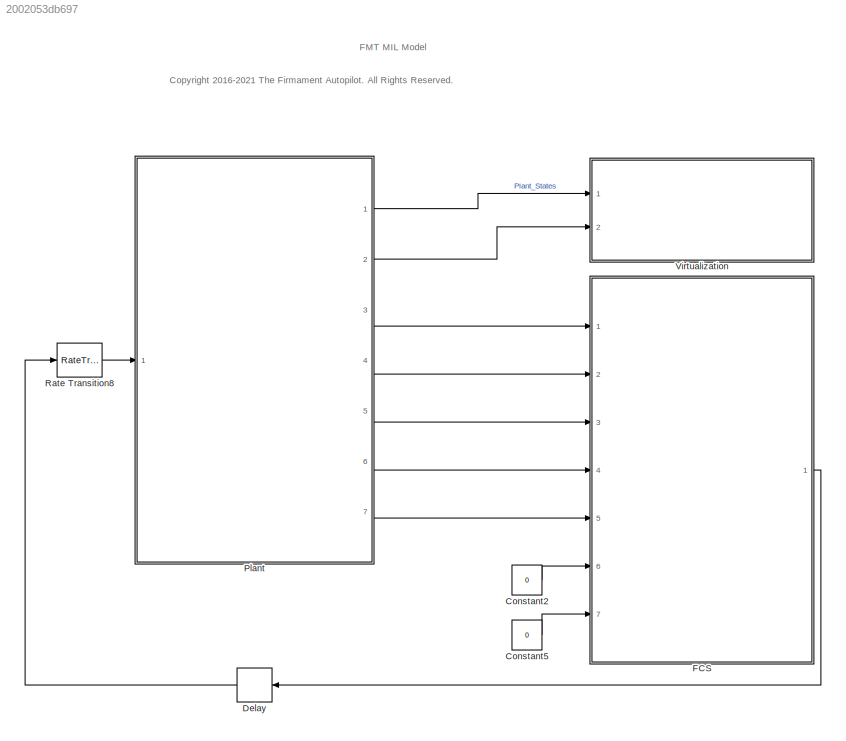
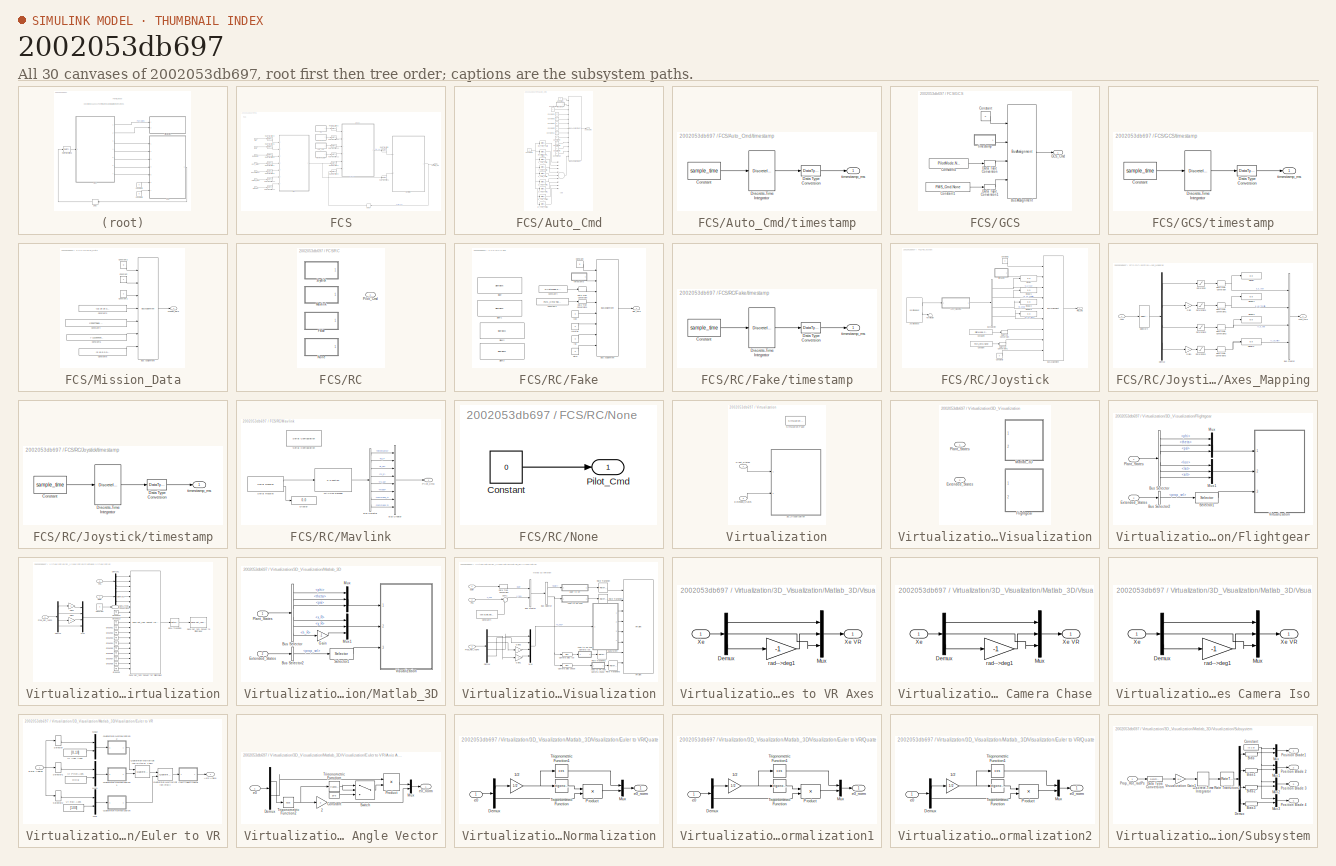
[diagram: thumbnail index - all 30 canvases of the model, root first then tree order]
MODEL slx_2002053db697
KIND model
CONFIG AbsTol = auto
CONFIG EnableMultiTasking = off
CONFIG FixedStep = 0.002
CONFIG MaxStep = auto
CONFIG MinStep = auto
CONFIG RelTol = 1e-3
CONFIG SampleTimeConstraint = Unconstrained
CONFIG Solver = FixedStepDiscrete
CONFIG SolverName = FixedStepDiscrete
CONFIG StartTime = 0.0
CONFIG StopTime = 1000
BLOCK [Constant] Constant2
  OutDataTypeStr = Bus: Rangefinder_Bus
  Value = 0
BLOCK [Constant] Constant5
  OutDataTypeStr = Bus: Optical_Flow_Bus
  Value = 0
BLOCK [Delay] Delay
  DelayLength = 1
  InputPortMap = u0
  Ports = [1, 1]
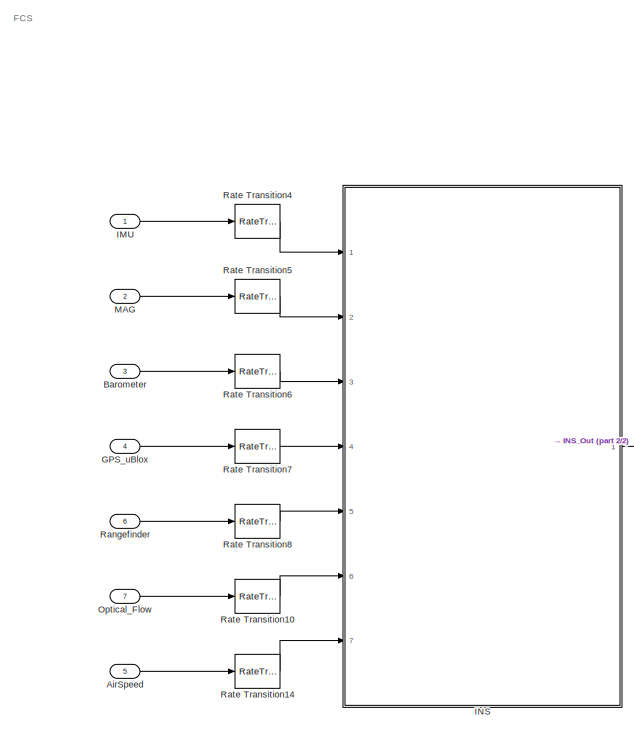
[diagram: FCS - part 1/2, left side, full height]
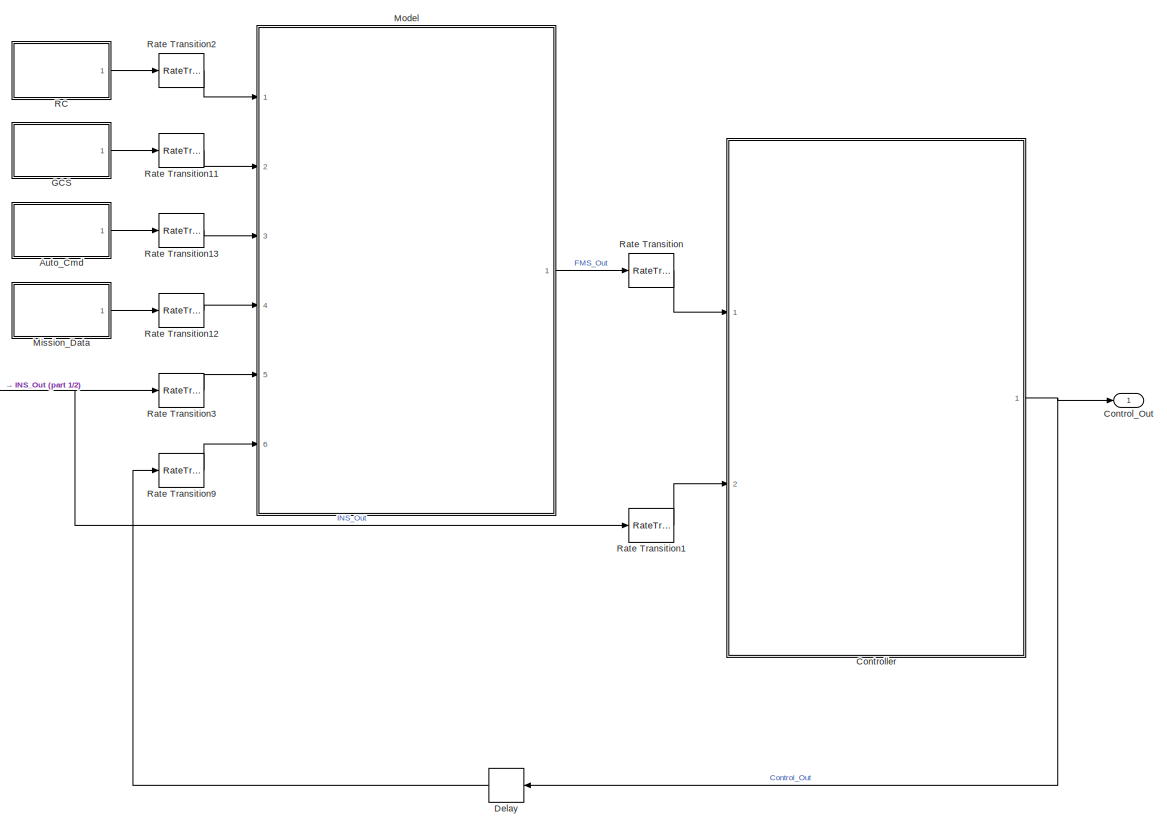
[diagram: FCS - part 2/2, right side, full height]
BLOCK [SubSystem] FCS
  Ports = [7, 1]
  RequestExecContextInheritance = off
  TreatAsAtomicUnit = on
BLOCK [Inport] FCS/AirSpeed
  IconDisplay = Port number
  Port = 5
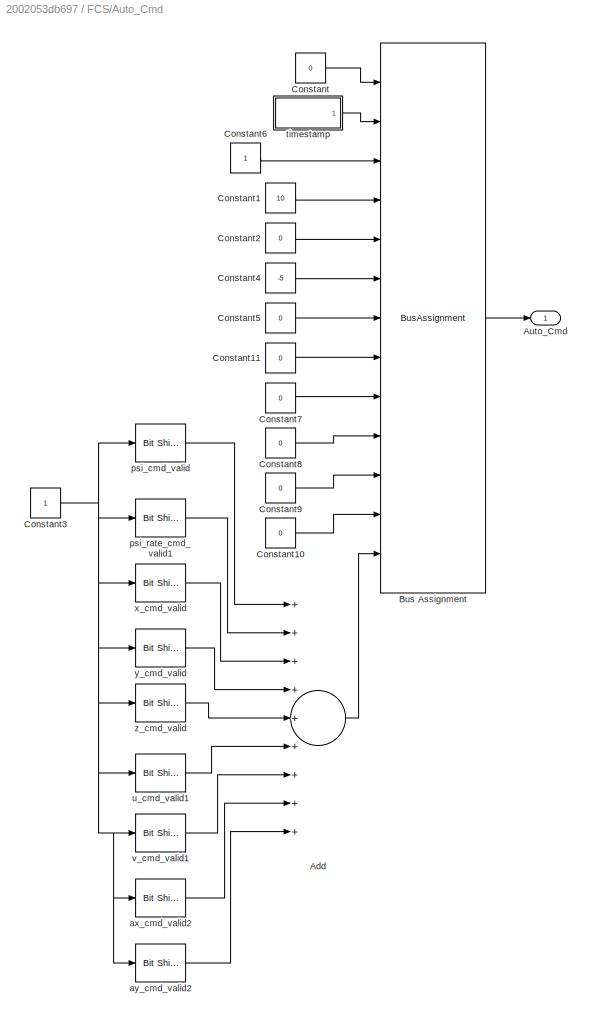
BLOCK [SubSystem] FCS/Auto_Cmd
  Ports = [0, 1]
  RequestExecContextInheritance = off
BLOCK [Sum] FCS/Auto_Cmd/Add
  InputSameDT = off
  Inputs = +++++++++
  OutDataTypeStr = Inherit: Inherit via internal rule
  Ports = [9, 1]
  SaturateOnIntegerOverflow = off
BLOCK [Outport] FCS/Auto_Cmd/Auto_Cmd
  IconDisplay = Port number
BLOCK [BusAssignment] FCS/Auto_Cmd/Bus Assignment
  AssignedSignals = timestamp,frame,x_cmd,y_cmd,z_cmd,psi_cmd,psi_rate_cmd,u_cmd,v_cmd,ax_cmd,ay_cmd,cmd_mask
  Ports = [13, 1]
BLOCK [Constant] FCS/Auto_Cmd/Constant
  OutDataTypeStr = Bus: Auto_Cmd_Bus
  Value = 0
BLOCK [Constant] FCS/Auto_Cmd/Constant1
  OutDataTypeStr = single
  Value = 10
BLOCK [Constant] FCS/Auto_Cmd/Constant10
  OutDataTypeStr = single
  Value = 0
BLOCK [Constant] FCS/Auto_Cmd/Constant11
  OutDataTypeStr = single
  Value = 0
BLOCK [Constant] FCS/Auto_Cmd/Constant2
  OutDataTypeStr = single
  Value = 0
BLOCK [Constant] FCS/Auto_Cmd/Constant3
  OutDataTypeStr = uint32
BLOCK [Constant] FCS/Auto_Cmd/Constant4
  OutDataTypeStr = single
  Value = -5
BLOCK [Constant] FCS/Auto_Cmd/Constant5
  OutDataTypeStr = single
  Value = 0
BLOCK [Constant] FCS/Auto_Cmd/Constant6
  OutDataTypeStr = uint8
BLOCK [Constant] FCS/Auto_Cmd/Constant7
  OutDataTypeStr = single
  Value = 0
BLOCK [Constant] FCS/Auto_Cmd/Constant8
  OutDataTypeStr = single
  Value = 0
BLOCK [Constant] FCS/Auto_Cmd/Constant9
  OutDataTypeStr = single
  Value = 0
BLOCK [Reference] FCS/Auto_Cmd/ax_cmd_valid2  REF=hdlsllib/Logic and Bit
Operations/Bit Shift
  Ports = [1, 1]
  SourceBlock = hdlsllib/Logic and Bit\nOperations/Bit Shift
  SourceProductBaseCode = HD
  SourceProductName = HDL Coder
  SourceType = Bit Shift
BLOCK [Reference] FCS/Auto_Cmd/ay_cmd_valid2  REF=hdlsllib/Logic and Bit
Operations/Bit Shift
  Ports = [1, 1]
  SourceBlock = hdlsllib/Logic and Bit\nOperations/Bit Shift
  SourceProductBaseCode = HD
  SourceProductName = HDL Coder
  SourceType = Bit Shift
BLOCK [Reference] FCS/Auto_Cmd/psi_cmd_valid  REF=hdlsllib/Logic and Bit
Operations/Bit Shift
  Ports = [1, 1]
  SourceBlock = hdlsllib/Logic and Bit\nOperations/Bit Shift
  SourceProductBaseCode = HD
  SourceProductName = HDL Coder
  SourceType = Bit Shift
BLOCK [Reference] FCS/Auto_Cmd/psi_rate_cmd_valid1  REF=hdlsllib/Logic and Bit
Operations/Bit Shift
  Ports = [1, 1]
  SourceBlock = hdlsllib/Logic and Bit\nOperations/Bit Shift
  SourceProductBaseCode = HD
  SourceProductName = HDL Coder
  SourceType = Bit Shift
BLOCK [SubSystem] FCS/Auto_Cmd/timestamp
  Ports = [0, 1]
  RequestExecContextInheritance = off
BLOCK [Constant] FCS/Auto_Cmd/timestamp/Constant
  Value = sample_time
BLOCK [DataTypeConversion] FCS/Auto_Cmd/timestamp/Data Type Conversion
  OutDataTypeStr = uint32
  RndMeth = Floor
  SaturateOnIntegerOverflow = off
BLOCK [DiscreteIntegrator] FCS/Auto_Cmd/timestamp/Discrete-Time Integrator
  ICPrevOutput = DiscIntNeverNeededParam
  ICPrevScaledInput = DiscIntNeverNeededParam
  InitialConditionSetting = Auto
  IntegratorMethod = Accumulation: Forward Euler
  Ports = [1, 1]
  SampleTime = -1
BLOCK [Outport] FCS/Auto_Cmd/timestamp/timestamp_ms
  IconDisplay = Port number
BLOCK [Reference] FCS/Auto_Cmd/u_cmd_valid1  REF=hdlsllib/Logic and Bit
Operations/Bit Shift
  Ports = [1, 1]
  SourceBlock = hdlsllib/Logic and Bit\nOperations/Bit Shift
  SourceProductBaseCode = HD
  SourceProductName = HDL Coder
  SourceType = Bit Shift
BLOCK [Reference] FCS/Auto_Cmd/v_cmd_valid1  REF=hdlsllib/Logic and Bit
Operations/Bit Shift
  Ports = [1, 1]
  SourceBlock = hdlsllib/Logic and Bit\nOperations/Bit Shift
  SourceProductBaseCode = HD
  SourceProductName = HDL Coder
  SourceType = Bit Shift
BLOCK [Reference] FCS/Auto_Cmd/x_cmd_valid  REF=hdlsllib/Logic and Bit
Operations/Bit Shift
  Ports = [1, 1]
  SourceBlock = hdlsllib/Logic and Bit\nOperations/Bit Shift
  SourceProductBaseCode = HD
  SourceProductName = HDL Coder
  SourceType = Bit Shift
BLOCK [Reference] FCS/Auto_Cmd/y_cmd_valid  REF=hdlsllib/Logic and Bit
Operations/Bit Shift
  Ports = [1, 1]
  SourceBlock = hdlsllib/Logic and Bit\nOperations/Bit Shift
  SourceProductBaseCode = HD
  SourceProductName = HDL Coder
  SourceType = Bit Shift
BLOCK [Reference] FCS/Auto_Cmd/z_cmd_valid  REF=hdlsllib/Logic and Bit
Operations/Bit Shift
  Ports = [1, 1]
  SourceBlock = hdlsllib/Logic and Bit\nOperations/Bit Shift
  SourceProductBaseCode = HD
  SourceProductName = HDL Coder
  SourceType = Bit Shift
BLOCK [Inport] FCS/Barometer
  IconDisplay = Port number
  Port = 3
BLOCK [Outport] FCS/Control_Out
  IconDisplay = Port number
BLOCK [ModelReference] FCS/Controller
  ModelNameDialog = Controller.slx
  ModelReferenceVersion = 1.908
  Ports = [2, 1]
BLOCK [Delay] FCS/Delay
  DelayLength = 1
  InputPortMap = u0
  Ports = [1, 1]
BLOCK [SubSystem] FCS/GCS
  Ports = [0, 1]
  RequestExecContextInheritance = off
BLOCK [BusAssignment] FCS/GCS/Bus Assignment
  AssignedSignals = timestamp,mode,cmd_1
  Ports = [4, 1]
BLOCK [Constant] FCS/GCS/Constant
  OutDataTypeStr = Bus: GCS_Cmd_Bus
  Value = 0
BLOCK [Constant] FCS/GCS/Constant1
  Value = FMS_Cmd.None
BLOCK [Constant] FCS/GCS/Constant4
  SampleTime = -1
  Value = PilotMode.None
BLOCK [DataTypeConversion] FCS/GCS/Data Type Conversion
  RndMeth = Floor
  SaturateOnIntegerOverflow = off
BLOCK [DataTypeConversion] FCS/GCS/Data Type Conversion1
  RndMeth = Floor
  SaturateOnIntegerOverflow = off
BLOCK [Outport] FCS/GCS/GCS_Cmd
  IconDisplay = Port number
BLOCK [SubSystem] FCS/GCS/timestamp
  Ports = [0, 1]
  RequestExecContextInheritance = off
BLOCK [Constant] FCS/GCS/timestamp/Constant
  Value = sample_time
BLOCK [DataTypeConversion] FCS/GCS/timestamp/Data Type Conversion
  OutDataTypeStr = uint32
  RndMeth = Floor
  SaturateOnIntegerOverflow = off
BLOCK [DiscreteIntegrator] FCS/GCS/timestamp/Discrete-Time Integrator
  ICPrevOutput = DiscIntNeverNeededParam
  ICPrevScaledInput = DiscIntNeverNeededParam
  InitialConditionSetting = Auto
  IntegratorMethod = Accumulation: Forward Euler
  Ports = [1, 1]
  SampleTime = -1
BLOCK [Outport] FCS/GCS/timestamp/timestamp_ms
  IconDisplay = Port number
BLOCK [Inport] FCS/GPS_uBlox
  IconDisplay = Port number
  Port = 4
BLOCK [Inport] FCS/IMU
  IconDisplay = Port number
BLOCK [ModelReference] FCS/INS
  ModelNameDialog = INS.slx
  ModelReferenceVersion = 1.3768
  Ports = [7, 1]
BLOCK [Inport] FCS/MAG
  IconDisplay = Port number
  Port = 2
BLOCK [SubSystem] FCS/Mission_Data
  Ports = [0, 1]
  RequestExecContextInheritance = off
BLOCK [BusAssignment] FCS/Mission_Data/Bus Assignment
  AssignedSignals = timestamp,valid_items,command,x,y,z
  Ports = [7, 1]
BLOCK [Constant] FCS/Mission_Data/Constant
  OutDataTypeStr = Inherit: Inherit via back propagation
BLOCK [Constant] FCS/Mission_Data/Constant1
  OutDataTypeStr = Inherit: Inherit via back propagation
  Value = 4
BLOCK [Constant] FCS/Mission_Data/Constant2
  OutDataTypeStr = Bus: Mission_Data_Bus
  Value = 0
BLOCK [Constant] FCS/Mission_Data/Constant3
  OutDataTypeStr = Inherit: Inherit via back propagation
  Value = [22 16 16 20 0 0 0 0]
BLOCK [Constant] FCS/Mission_Data/Constant4
  OutDataTypeStr = Inherit: Inherit via back propagation
  Value = [376277883 376280341 376277815 0 0 0 0 0]
BLOCK [Constant] FCS/Mission_Data/Constant5
  OutDataTypeStr = Inherit: Inherit via back propagation
  Value = [-1223895080 -1223892241 -1223890046 0 0 0 0 0]
BLOCK [Constant] FCS/Mission_Data/Constant6
  OutDataTypeStr = Inherit: Inherit via back propagation
  Value = [5 10 5 0 0 0 0 0]
BLOCK [Outport] FCS/Mission_Data/Mission_Data
  IconDisplay = Port number
BLOCK [ModelReference] FCS/Model
  ModelNameDialog = FMS.slx
  ModelReferenceVersion = 1.1932
  Ports = [6, 1]
BLOCK [Inport] FCS/Optical_Flow
  IconDisplay = Port number
  Port = 7
BLOCK [SubSystem] FCS/RC
  LabelModeActiveChoice = NONE_INPUT
  Ports = [0, 1]
  RequestExecContextInheritance = off
  Variant = on
  VariantControl = Variant1
  VariantControlMode = Label
BLOCK [Outport] FCS/RC/ Pilot_Cmd
  IconDisplay = Port number
BLOCK [SubSystem] FCS/RC/Fake
  Ports = [0, 1]
  RequestExecContextInheritance = off
  VariantControl = FAKE_INPUT
BLOCK [BusAssignment] FCS/RC/Fake/Bus Assignment
  AssignedSignals = timestamp,mode,cmd_1,stick_yaw,stick_throttle,stick_roll,stick_pitch
  Ports = [8, 1]
BLOCK [Constant] FCS/RC/Fake/Constant
  OutDataTypeStr = Bus: Pilot_Cmd_Bus
  Value = 0
BLOCK [Constant] FCS/RC/Fake/Constant1
  Value = FMS_Cmd.Takeoff
BLOCK [Constant] FCS/RC/Fake/Constant4
  SampleTime = -1
  Value = PilotMode.Position
BLOCK [DataTypeConversion] FCS/RC/Fake/Data Type Conversion
  RndMeth = Floor
  SaturateOnIntegerOverflow = off
BLOCK [DataTypeConversion] FCS/RC/Fake/Data Type Conversion1
  RndMeth = Floor
  SaturateOnIntegerOverflow = off
BLOCK [Outport] FCS/RC/Fake/Pilot_Cmd
  IconDisplay = Port number
  OutDataTypeStr = Bus: Pilot_Cmd_Bus
BLOCK [SliderBlock] FCS/RC/Fake/Slider
  ScaleMax = 1
  ScaleMin = -1
  WebBlockId = 1308
BLOCK [SliderBlock] FCS/RC/Fake/Slider1
  ScaleMax = 1
  ScaleMin = -1
  WebBlockId = 1315
BLOCK [SliderBlock] FCS/RC/Fake/Slider2
  ScaleMax = 1
  ScaleMin = -1
  WebBlockId = 1316
BLOCK [SliderBlock] FCS/RC/Fake/Slider3
  ScaleMax = 1
  ScaleMin = -1
  WebBlockId = 1317
BLOCK [Constant] FCS/RC/Fake/pitch
  OutDataTypeStr = single
  Value = 0
BLOCK [Constant] FCS/RC/Fake/roll
  OutDataTypeStr = single
  Value = 0
BLOCK [Constant] FCS/RC/Fake/throttle
  OutDataTypeStr = single
  Value = 0
BLOCK [SubSystem] FCS/RC/Fake/timestamp
  Ports = [0, 1]
  RequestExecContextInheritance = off
BLOCK [Constant] FCS/RC/Fake/timestamp/Constant
  Value = sample_time
BLOCK [DataTypeConversion] FCS/RC/Fake/timestamp/Data Type Conversion
  OutDataTypeStr = uint32
  RndMeth = Floor
  SaturateOnIntegerOverflow = off
BLOCK [DiscreteIntegrator] FCS/RC/Fake/timestamp/Discrete-Time Integrator
  ICPrevOutput = DiscIntNeverNeededParam
  ICPrevScaledInput = DiscIntNeverNeededParam
  InitialConditionSetting = Auto
  IntegratorMethod = Accumulation: Forward Euler
  Ports = [1, 1]
  SampleTime = -1
BLOCK [Outport] FCS/RC/Fake/timestamp/timestamp_ms
  IconDisplay = Port number
BLOCK [Constant] FCS/RC/Fake/yaw
  OutDataTypeStr = single
  Value = 0
BLOCK [SubSystem] FCS/RC/Joystick
  Ports = [0, 1]
  RequestExecContextInheritance = off
  VariantControl = JOYSTICK_INPUT
BLOCK [SubSystem] FCS/RC/Joystick/Axes_Mapping
  Ports = [1, 1]
  RequestExecContextInheritance = off
BLOCK [Inport] FCS/RC/Joystick/Axes_Mapping/Axes
  IconDisplay = Port number
BLOCK [BusCreator] FCS/RC/Joystick/Axes_Mapping/Bus Creator
  DisplayOption = bar
  InheritFromInputs = on
  Inputs = 4
  Ports = [4, 1]
BLOCK [DataTypeConversion] FCS/RC/Joystick/Axes_Mapping/Data Type Conversion
  OutDataTypeStr = single
  RndMeth = Floor
  SaturateOnIntegerOverflow = off
BLOCK [DataTypeConversion] FCS/RC/Joystick/Axes_Mapping/Data Type Conversion1
  OutDataTypeStr = single
  RndMeth = Floor
  SaturateOnIntegerOverflow = off
BLOCK [DataTypeConversion] FCS/RC/Joystick/Axes_Mapping/Data Type Conversion2
  OutDataTypeStr = single
  RndMeth = Floor
  SaturateOnIntegerOverflow = off
BLOCK [DataTypeConversion] FCS/RC/Joystick/Axes_Mapping/Data Type Conversion3
  OutDataTypeStr = single
  RndMeth = Floor
  SaturateOnIntegerOverflow = off
BLOCK [Demux] FCS/RC/Joystick/Axes_Mapping/Demux
  DisplayOption = bar
  Ports = [1, 4]
BLOCK [Display] FCS/RC/Joystick/Axes_Mapping/Display
  Decimation = 1
  Ports = [1]
BLOCK [Display] FCS/RC/Joystick/Axes_Mapping/Display1
  Decimation = 1
  Ports = [1]
BLOCK [Display] FCS/RC/Joystick/Axes_Mapping/Display2
  Decimation = 1
  Ports = [1]
BLOCK [Display] FCS/RC/Joystick/Axes_Mapping/Display3
  Decimation = 1
  Ports = [1]
BLOCK [Gain] FCS/RC/Joystick/Axes_Mapping/Gain
  Gain = -1
  ParamDataTypeStr = Inherit: Inherit via internal rule
  SaturateOnIntegerOverflow = off
BLOCK [Gain] FCS/RC/Joystick/Axes_Mapping/Gain1
  Gain = -1
  ParamDataTypeStr = Inherit: Inherit via internal rule
  SaturateOnIntegerOverflow = off
BLOCK [Saturate] FCS/RC/Joystick/Axes_Mapping/Saturation
  InputPortMap = u0
  LowerLimit = -1
  Ports = [1, 1]
  UpperLimit = 1
BLOCK [Saturate] FCS/RC/Joystick/Axes_Mapping/Saturation1
  InputPortMap = u0
  LowerLimit = -1
  Ports = [1, 1]
  UpperLimit = 1
BLOCK [Saturate] FCS/RC/Joystick/Axes_Mapping/Saturation2
  InputPortMap = u0
  LowerLimit = -1
  Ports = [1, 1]
  UpperLimit = 1
BLOCK [Saturate] FCS/RC/Joystick/Axes_Mapping/Saturation3
  InputPortMap = u0
  LowerLimit = -1
  Ports = [1, 1]
  UpperLimit = 1
BLOCK [Selector] FCS/RC/Joystick/Axes_Mapping/Selector4
  IndexOptions = Index vector (dialog)
  Indices = [1 2 4 5]
  InputPortWidth = 8
  OutputSizes = 1
  Ports = [1, 1]
BLOCK [Outport] FCS/RC/Joystick/Axes_Mapping/stick_cmd
  IconDisplay = Port number
BLOCK [BusAssignment] FCS/RC/Joystick/Bus Assignment
  AssignedSignals = timestamp,stick_yaw,stick_throttle,stick_roll,stick_pitch,mode,cmd_1,cmd_2
  Ports = [9, 1]
BLOCK [BusSelector] FCS/RC/Joystick/Bus Selector
  OutputAsBus = off
  OutputSignals = ls_lr_Yaw,ls_ud_Throttle,rs_lr_Roll,rs_ud_Pitch
  Ports = [1, 4]
BLOCK [Constant] FCS/RC/Joystick/Constant
  Value = FMS_Cmd.None
BLOCK [Constant] FCS/RC/Joystick/Constant1
  OutDataTypeStr = Bus: Pilot_Cmd_Bus
  Value = 0
BLOCK [Constant] FCS/RC/Joystick/Constant3
  OutDataTypeStr = Inherit: Inherit via back propagation
  Value = 0
BLOCK [Constant] FCS/RC/Joystick/Constant4
  SampleTime = -1
  Value = PilotMode.Position
BLOCK [DataTypeConversion] FCS/RC/Joystick/Data Type Conversion
  RndMeth = Floor
  SaturateOnIntegerOverflow = off
BLOCK [DataTypeConversion] FCS/RC/Joystick/Data Type Conversion1
  RndMeth = Floor
  SaturateOnIntegerOverflow = off
BLOCK [Display] FCS/RC/Joystick/Display
  Decimation = 1
  Ports = [1]
BLOCK [Display] FCS/RC/Joystick/Display1
  Decimation = 1
  Ports = [1]
BLOCK [Display] FCS/RC/Joystick/Display2
  Decimation = 1
  Ports = [1]
BLOCK [Display] FCS/RC/Joystick/Display3
  Decimation = 1
  Ports = [1]
BLOCK [Reference] FCS/RC/Joystick/Joystick Input  REF=vrlib/Joystick Input
  Ports = [0, 2]
  SourceBlock = vrlib/Joystick Input
  SourceProductBaseCode = VR
  SourceProductName = Simulink 3D Animation
  SourceType = Joystick Input
BLOCK [Outport] FCS/RC/Joystick/Pilot_Cmd
  IconDisplay = Port number
  OutDataTypeStr = Bus: Pilot_Cmd_Bus
BLOCK [Terminator] FCS/RC/Joystick/Terminator
BLOCK [SubSystem] FCS/RC/Joystick/timestamp
  Ports = [0, 1]
  RequestExecContextInheritance = off
BLOCK [Constant] FCS/RC/Joystick/timestamp/Constant
  Value = sample_time
BLOCK [DataTypeConversion] FCS/RC/Joystick/timestamp/Data Type Conversion
  OutDataTypeStr = uint32
  RndMeth = Floor
  SaturateOnIntegerOverflow = off
BLOCK [DiscreteIntegrator] FCS/RC/Joystick/timestamp/Discrete-Time Integrator
  ICPrevOutput = DiscIntNeverNeededParam
  ICPrevScaledInput = DiscIntNeverNeededParam
  InitialConditionSetting = Auto
  IntegratorMethod = Accumulation: Forward Euler
  Ports = [1, 1]
  SampleTime = -1
BLOCK [Outport] FCS/RC/Joystick/timestamp/timestamp_ms
  IconDisplay = Port number
BLOCK [SubSystem] FCS/RC/Mavlink
  Ports = [0, 1]
  RequestExecContextInheritance = off
  VariantControl = MAVLINK_INPUT
BLOCK [BusCreator] FCS/RC/Mavlink/Bus Creator
  DisplayOption = bar
  InheritFromInputs = on
  Inputs = 8
  Ports = [8, 1]
BLOCK [BusSelector] FCS/RC/Mavlink/Bus Selector
  OutputAsBus = off
  OutputSignals = timestamp,ls_lr,ls_ud,rs_lr,rs_ud,mode,command_1,command_2
  Ports = [1, 8]
BLOCK [Display] FCS/RC/Mavlink/Display
  Decimation = 1
  Ports = [1]
BLOCK [S-Function] FCS/RC/Mavlink/MAVLink Decoder
  EnableBusSupport = off
  FunctionName = sfun_decode_mavlink
  Ports = [1, 1]
  SFcnIsStateOwnerBlock = off
  SFunctionDeploymentMode = off
BLOCK [Outport] FCS/RC/Mavlink/Pilot_Cmd
  IconDisplay = Port number
BLOCK [Reference] FCS/RC/Mavlink/Serial Configuration  REF=instrumentlib/Serial Configuration
  Ports = []
  Priority = -200000
  SourceBlock = instrumentlib/Serial Configuration
  SourceProductBaseCode = IC
  SourceProductName = Instrument Control Toolbox
  SourceType = Serial Configuration
BLOCK [Reference] FCS/RC/Mavlink/Serial Receive  REF=instrumentlib/Serial Receive
  Ports = [0, 2]
  SourceBlock = instrumentlib/Serial Receive
  SourceProductBaseCode = IC
  SourceProductName = Instrument Control Toolbox
  SourceType = Serial Receive
BLOCK [SubSystem] FCS/RC/None
  Ports = [0, 1]
  RequestExecContextInheritance = off
  VariantControl = NONE_INPUT
BLOCK [Constant] FCS/RC/None/Constant
  OutDataTypeStr = Bus: Pilot_Cmd_Bus
  Value = 0
BLOCK [Outport] FCS/RC/None/Pilot_Cmd
  IconDisplay = Port number
  OutDataTypeStr = Bus: Pilot_Cmd_Bus
BLOCK [Inport] FCS/Rangefinder
  IconDisplay = Port number
  Port = 6
BLOCK [RateTransition] FCS/Rate Transition
  OutPortSampleTime = CONTROL_CONST.dt
BLOCK [RateTransition] FCS/Rate Transition1
  OutPortSampleTime = CONTROL_CONST.dt
BLOCK [RateTransition] FCS/Rate Transition10
  OutPortSampleTime = INS_CONST.dt
BLOCK [RateTransition] FCS/Rate Transition11
  OutPortSampleTime = FMS_CONST.dt
BLOCK [RateTransition] FCS/Rate Transition12
  OutPortSampleTime = FMS_CONST.dt
BLOCK [RateTransition] FCS/Rate Transition13
  OutPortSampleTime = FMS_CONST.dt
BLOCK [RateTransition] FCS/Rate Transition14
  OutPortSampleTime = INS_CONST.dt
BLOCK [RateTransition] FCS/Rate Transition2
  OutPortSampleTime = FMS_CONST.dt
BLOCK [RateTransition] FCS/Rate Transition3
  OutPortSampleTime = FMS_CONST.dt
BLOCK [RateTransition] FCS/Rate Transition4
  OutPortSampleTime = INS_CONST.dt
BLOCK [RateTransition] FCS/Rate Transition5
  OutPortSampleTime = INS_CONST.dt
BLOCK [RateTransition] FCS/Rate Transition6
  OutPortSampleTime = INS_CONST.dt
BLOCK [RateTransition] FCS/Rate Transition7
  OutPortSampleTime = INS_CONST.dt
BLOCK [RateTransition] FCS/Rate Transition8
  OutPortSampleTime = INS_CONST.dt
BLOCK [RateTransition] FCS/Rate Transition9
  OutPortSampleTime = FMS_CONST.dt
BLOCK [ModelReference] Plant
  ModelNameDialog = Plant.slx
  ModelReferenceVersion = 1.763
  Ports = [1, 7]
BLOCK [RateTransition] Rate Transition8
  OutPortSampleTime = PLANT_CONST.dt
BLOCK [SubSystem] Virtualization
  Ports = [2]
  RequestExecContextInheritance = off
  TreatAsAtomicUnit = on
BLOCK [SubSystem] Virtualization/3D_Visualization
  LabelModeActiveChoice = Matlab_3D
  Ports = [2]
  RequestExecContextInheritance = off
  Variant = on
  VariantControlMode = Label
BLOCK [Inport] Virtualization/3D_Visualization/Extended_States
  IconDisplay = Port number
  Port = 2
BLOCK [SubSystem] Virtualization/3D_Visualization/Flightgear
  Ports = [2]
  RequestExecContextInheritance = off
  VariantControl = Flightgear
BLOCK [BusSelector] Virtualization/3D_Visualization/Flightgear/Bus Selector
  OutputAsBus = off
  OutputSignals = phi,theta,psi,lon,lat,alt
  Ports = [1, 6]
BLOCK [BusSelector] Virtualization/3D_Visualization/Flightgear/Bus Selector2
  OutputAsBus = off
  OutputSignals = prop_vel
  Ports = [1, 1]
BLOCK [Inport] Virtualization/3D_Visualization/Flightgear/Extended_States
  IconDisplay = Port number
  Port = 2
BLOCK [Mux] Virtualization/3D_Visualization/Flightgear/Mux
  DisplayOption = bar
  Inputs = 3
  Ports = [3, 1]
BLOCK [Mux] Virtualization/3D_Visualization/Flightgear/Mux1
  DisplayOption = bar
  Inputs = 3
  Ports = [3, 1]
BLOCK [Inport] Virtualization/3D_Visualization/Flightgear/Plant_States
  IconDisplay = Port number
BLOCK [Selector] Virtualization/3D_Visualization/Flightgear/Selector1
  IndexOptions = Index vector (dialog)
  Indices = [1:4]
  InputPortWidth = 8
  OutputSizes = 1
  Ports = [1, 1]
BLOCK [SubSystem] Virtualization/3D_Visualization/Flightgear/Virtualization
  Ports = [3]
  RequestExecContextInheritance = off
BLOCK [Constant] Virtualization/3D_Visualization/Flightgear/Virtualization/Constant
  Value = 4
BLOCK [DataTypeConversion] Virtualization/3D_Visualization/Flightgear/Virtualization/Data Type Conversion4
  OutDataTypeStr = uint32
  RndMeth = Floor
  SaturateOnIntegerOverflow = off
BLOCK [Demux] Virtualization/3D_Visualization/Flightgear/Virtualization/Demux
  DisplayOption = bar
  Ports = [1, 4]
BLOCK [Demux] Virtualization/3D_Visualization/Flightgear/Virtualization/Demux1
  DisplayOption = bar
  Outputs = 3
  Ports = [1, 3]
BLOCK [Demux] Virtualization/3D_Visualization/Flightgear/Virtualization/Demux2
  DisplayOption = bar
  Outputs = 3
  Ports = [1, 3]
BLOCK [Inport] Virtualization/3D_Visualization/Flightgear/Virtualization/Euler
  IconDisplay = Port number
BLOCK [Gain] Virtualization/3D_Visualization/Flightgear/Virtualization/Gain1
  Gain = -1
  ParamDataTypeStr = Inherit: Inherit via internal rule
  SaturateOnIntegerOverflow = off
BLOCK [Gain] Virtualization/3D_Visualization/Flightgear/Virtualization/Gain2
  Gain = -1
  ParamDataTypeStr = Inherit: Inherit via internal rule
  SaturateOnIntegerOverflow = off
BLOCK [Ground] Virtualization/3D_Visualization/Flightgear/Virtualization/Ground1
BLOCK [Ground] Virtualization/3D_Visualization/Flightgear/Virtualization/Ground10
BLOCK [Ground] Virtualization/3D_Visualization/Flightgear/Virtualization/Ground13
BLOCK [Ground] Virtualization/3D_Visualization/Flightgear/Virtualization/Ground2
BLOCK [Ground] Virtualization/3D_Visualization/Flightgear/Virtualization/Ground3
BLOCK [Ground] Virtualization/3D_Visualization/Flightgear/Virtualization/Ground4
BLOCK [Ground] Virtualization/3D_Visualization/Flightgear/Virtualization/Ground5
BLOCK [Ground] Virtualization/3D_Visualization/Flightgear/Virtualization/Ground6
BLOCK [Ground] Virtualization/3D_Visualization/Flightgear/Virtualization/Ground7
BLOCK [Ground] Virtualization/3D_Visualization/Flightgear/Virtualization/Ground8
BLOCK [Ground] Virtualization/3D_Visualization/Flightgear/Virtualization/Ground9
BLOCK [Mux] Virtualization/3D_Visualization/Flightgear/Virtualization/Mux
  DisplayOption = bar
  Ports = [4, 1]
BLOCK [Reference] Virtualization/3D_Visualization/Flightgear/Virtualization/Pack net_fdm Packet for FlightGear  REF=aerolibfltsims/Pack
net_fdm Packet
for FlightGear
  AttributesFormatString = Version Selected: %<FlightGearVersion>
  Ports = [19, 1]
  SourceBlock = aerolibfltsims/Pack\nnet_fdm Packet\nfor FlightGear
  SourceProductBaseCode = AE
  SourceProductName = Aerospace Blockset
  SourceType = FlightGearPackNetFdm
BLOCK [Inport] Virtualization/3D_Visualization/Flightgear/Virtualization/Pos
  IconDisplay = Port number
  Port = 2
BLOCK [Inport] Virtualization/3D_Visualization/Flightgear/Virtualization/Prop_Rot_radPs
  IconDisplay = Port number
  Port = 3
BLOCK [RateTransition] Virtualization/3D_Visualization/Flightgear/Virtualization/Rate Transition
BLOCK [Reference] Virtualization/3D_Visualization/Flightgear/Virtualization/Send net_fdm Packet to FlightGear  REF=aerolibfltsims/Send
net_fdm Packet
to FlightGear
  Ports = [1]
  SourceBlock = aerolibfltsims/Send\nnet_fdm Packet\nto FlightGear
  SourceProductBaseCode = AE
  SourceProductName = Aerospace Blockset
  SourceType = FlightGearSendNetFdm
BLOCK [SubSystem] Virtualization/3D_Visualization/Matlab_3D
  Ports = [2]
  RequestExecContextInheritance = off
  VariantControl = Matlab_3D
BLOCK [BusSelector] Virtualization/3D_Visualization/Matlab_3D/Bus Selector
  OutputAsBus = off
  OutputSignals = phi,theta,psi,x_R,y_R,h_R
  Ports = [1, 6]
BLOCK [BusSelector] Virtualization/3D_Visualization/Matlab_3D/Bus Selector2
  OutputAsBus = off
  OutputSignals = prop_vel
  Ports = [1, 1]
BLOCK [Inport] Virtualization/3D_Visualization/Matlab_3D/Extended_States
  IconDisplay = Port number
  Port = 2
BLOCK [Gain] Virtualization/3D_Visualization/Matlab_3D/Gain
  Gain = -1
  OutDataTypeStr = Inherit: Inherit via internal rule
  ParamDataTypeStr = Inherit: Inherit via internal rule
  SaturateOnIntegerOverflow = off
BLOCK [Mux] Virtualization/3D_Visualization/Matlab_3D/Mux
  DisplayOption = bar
  Inputs = 3
  Ports = [3, 1]
BLOCK [Mux] Virtualization/3D_Visualization/Matlab_3D/Mux1
  DisplayOption = bar
  Inputs = 3
  Ports = [3, 1]
BLOCK [Inport] Virtualization/3D_Visualization/Matlab_3D/Plant_States
  IconDisplay = Port number
BLOCK [Selector] Virtualization/3D_Visualization/Matlab_3D/Selector1
  IndexOptions = Index vector (dialog)
  Indices = [1:4]
  InputPortWidth = 8
  OutputSizes = 1
  Ports = [1, 1]
BLOCK [SubSystem] Virtualization/3D_Visualization/Matlab_3D/Visualization
  Ports = [3]
  RequestExecContextInheritance = off
BLOCK [SubSystem] Virtualization/3D_Visualization/Matlab_3D/Visualization/Axes to VR Axes
  Ports = [1, 1]
  RequestExecContextInheritance = off
BLOCK [SubSystem] Virtualization/3D_Visualization/Matlab_3D/Visualization/Axes to VR Axes Camera Chase
  Ports = [1, 1]
  RequestExecContextInheritance = off
BLOCK [Demux] Virtualization/3D_Visualization/Matlab_3D/Visualization/Axes to VR Axes Camera Chase/Demux
  Outputs = 3
  Ports = [1, 3]
BLOCK [Mux] Virtualization/3D_Visualization/Matlab_3D/Visualization/Axes to VR Axes Camera Chase/Mux
  DisplayOption = bar
  Inputs = 3
  Ports = [3, 1]
BLOCK [Inport] Virtualization/3D_Visualization/Matlab_3D/Visualization/Axes to VR Axes Camera Chase/Xe
  IconDisplay = Port number
BLOCK [Outport] Virtualization/3D_Visualization/Matlab_3D/Visualization/Axes to VR Axes Camera Chase/Xe VR
  IconDisplay = Port number
BLOCK [Gain] Virtualization/3D_Visualization/Matlab_3D/Visualization/Axes to VR Axes Camera Chase/rad-->deg1
  Gain = -1
BLOCK [SubSystem] Virtualization/3D_Visualization/Matlab_3D/Visualization/Axes to VR Axes Camera Iso
  Ports = [1, 1]
  RequestExecContextInheritance = off
BLOCK [Demux] Virtualization/3D_Visualization/Matlab_3D/Visualization/Axes to VR Axes Camera Iso/Demux
  Outputs = 3
  Ports = [1, 3]
BLOCK [Mux] Virtualization/3D_Visualization/Matlab_3D/Visualization/Axes to VR Axes Camera Iso/Mux
  DisplayOption = bar
  Inputs = 3
  Ports = [3, 1]
BLOCK [Inport] Virtualization/3D_Visualization/Matlab_3D/Visualization/Axes to VR Axes Camera Iso/Xe
  IconDisplay = Port number
BLOCK [Outport] Virtualization/3D_Visualization/Matlab_3D/Visualization/Axes to VR Axes Camera Iso/Xe VR
  IconDisplay = Port number
BLOCK [Gain] Virtualization/3D_Visualization/Matlab_3D/Visualization/Axes to VR Axes Camera Iso/rad-->deg1
  Gain = -1
BLOCK [Demux] Virtualization/3D_Visualization/Matlab_3D/Visualization/Axes to VR Axes/Demux
  Outputs = 3
  Ports = [1, 3]
BLOCK [Mux] Virtualization/3D_Visualization/Matlab_3D/Visualization/Axes to VR Axes/Mux
  DisplayOption = bar
  Inputs = 3
  Ports = [3, 1]
BLOCK [Inport] Virtualization/3D_Visualization/Matlab_3D/Visualization/Axes to VR Axes/Xe
  IconDisplay = Port number
BLOCK [Outport] Virtualization/3D_Visualization/Matlab_3D/Visualization/Axes to VR Axes/Xe VR
  IconDisplay = Port number
BLOCK [Gain] Virtualization/3D_Visualization/Matlab_3D/Visualization/Axes to VR Axes/rad-->deg1
  Gain = -1
BLOCK [BusCreator] Virtualization/3D_Visualization/Matlab_3D/Visualization/Bus Creator
  DisplayOption = bar
  InheritFromInputs = on
  Inputs = 2
  Ports = [2, 1]
BLOCK [BusSelector] Virtualization/3D_Visualization/Matlab_3D/Visualization/Bus Selector
  OutputAsBus = off
  OutputSignals = Euler,X_ned
  Ports = [1, 2]
BLOCK [Bias] Virtualization/3D_Visualization/Matlab_3D/Visualization/Camera bias Chase
  Bias = [-4 0 -.9558]'
  SaturateOnIntegerOverflow = off
BLOCK [Bias] Virtualization/3D_Visualization/Matlab_3D/Visualization/Camera bias Iso
  Bias = [0.9009 .99 -.6247]'
  SaturateOnIntegerOverflow = off
BLOCK [Constant] Virtualization/3D_Visualization/Matlab_3D/Visualization/Constant4
  OutDataTypeStr = Inherit: Inherit via back propagation
  Value = [57.9;95.99;-0.67]
BLOCK [DataTypeConversion] Virtualization/3D_Visualization/Matlab_3D/Visualization/Data Type Conversion
  RndMeth = Floor
  SaturateOnIntegerOverflow = off
BLOCK [Demux] Virtualization/3D_Visualization/Matlab_3D/Visualization/Demux
  DisplayOption = bar
  Ports = [1, 4]
BLOCK [Inport] Virtualization/3D_Visualization/Matlab_3D/Visualization/Euler
  IconDisplay = Port number
BLOCK [SubSystem] Virtualization/3D_Visualization/Matlab_3D/Visualization/Euler to VR
  Ports = [1, 1]
  RequestExecContextInheritance = off
BLOCK [Outport] Virtualization/3D_Visualization/Matlab_3D/Visualization/Euler to VR/Axis Angle
  IconDisplay = Port number
BLOCK [SubSystem] Virtualization/3D_Visualization/Matlab_3D/Visualization/Euler to VR/Axis Angle Vector
  Ports = [1, 1]
  RequestExecContextInheritance = off
BLOCK [Gain] Virtualization/3D_Visualization/Matlab_3D/Visualization/Euler to VR/Axis Angle Vector/2
  Gain = 2
BLOCK [Constant] Virtualization/3D_Visualization/Matlab_3D/Visualization/Euler to VR/Axis Angle Vector/Constant
  Value = 1e-6
BLOCK [Demux] Virtualization/3D_Visualization/Matlab_3D/Visualization/Euler to VR/Axis Angle Vector/Demux
  Outputs = [1 3 ]
  Ports = [1, 2]
BLOCK [Mux] Virtualization/3D_Visualization/Matlab_3D/Visualization/Euler to VR/Axis Angle Vector/Mux
  DisplayOption = bar
  Inputs = 2
  Ports = [2, 1]
BLOCK [Product] Virtualization/3D_Visualization/Matlab_3D/Visualization/Euler to VR/Axis Angle Vector/Product
  Inputs = */
  Ports = [2, 1]
  RndMeth = Floor
BLOCK [Switch] Virtualization/3D_Visualization/Matlab_3D/Visualization/Euler to VR/Axis Angle Vector/Switch
  Criteria = u2 ~= 0
  InputSameDT = off
  SaturateOnIntegerOverflow = off
BLOCK [Trigonometry] Virtualization/3D_Visualization/Matlab_3D/Visualization/Euler to VR/Axis Angle Vector/Trigonometric Function
  Ports = [1, 1]
BLOCK [Trigonometry] Virtualization/3D_Visualization/Matlab_3D/Visualization/Euler to VR/Axis Angle Vector/Trigonometric Function2
  Operator = acos
  Ports = [1, 1]
BLOCK [Inport] Virtualization/3D_Visualization/Matlab_3D/Visualization/Euler to VR/Axis Angle Vector/e0
  IconDisplay = Port number
BLOCK [Outport] Virtualization/3D_Visualization/Matlab_3D/Visualization/Euler to VR/Axis Angle Vector/e0_norm
  IconDisplay = Port number
BLOCK [Inport] Virtualization/3D_Visualization/Matlab_3D/Visualization/Euler to VR/Euler Angles
  IconDisplay = Port number
BLOCK [Mux] Virtualization/3D_Visualization/Matlab_3D/Visualization/Euler to VR/Mux
  DisplayOption = bar
  Inputs = 2
  Ports = [2, 1]
BLOCK [Mux] Virtualization/3D_Visualization/Matlab_3D/Visualization/Euler to VR/Mux1
  DisplayOption = bar
  Inputs = 2
  Ports = [2, 1]
BLOCK [Mux] Virtualization/3D_Visualization/Matlab_3D/Visualization/Euler to VR/Mux2
  DisplayOption = bar
  Inputs = 2
  Ports = [2, 1]
BLOCK [Reference] Virtualization/3D_Visualization/Matlab_3D/Visualization/Euler to VR/Quaternion Multiplication (Pitch & Yaw)  REF=aerolibutil/Quaternion
Multiplication
  Ports = [2, 1]
  SourceBlock = aerolibutil/Quaternion\nMultiplication
  SourceProductBaseCode = AE
  SourceProductName = Aerospace Blockset
  SourceType = Quaternion Multiplication
BLOCK [Reference] Virtualization/3D_Visualization/Matlab_3D/Visualization/Euler to VR/Quaternion Multiplication (Roll)  REF=aerolibutil/Quaternion
Multiplication
  Ports = [2, 1]
  SourceBlock = aerolibutil/Quaternion\nMultiplication
  SourceProductBaseCode = AE
  SourceProductName = Aerospace Blockset
  SourceType = Quaternion Multiplication
BLOCK [SubSystem] Virtualization/3D_Visualization/Matlab_3D/Visualization/Euler to VR/Quaternion Normalization
  Ports = [1, 1]
  RequestExecContextInheritance = off
BLOCK [Gain] Virtualization/3D_Visualization/Matlab_3D/Visualization/Euler to VR/Quaternion Normalization/1//2
  Gain = 1/2
BLOCK [Demux] Virtualization/3D_Visualization/Matlab_3D/Visualization/Euler to VR/Quaternion Normalization/Demux
  Outputs = [1 3]
  Ports = [1, 2]
BLOCK [Mux] Virtualization/3D_Visualization/Matlab_3D/Visualization/Euler to VR/Quaternion Normalization/Mux
  DisplayOption = bar
  Inputs = 2
  Ports = [2, 1]
BLOCK [Product] Virtualization/3D_Visualization/Matlab_3D/Visualization/Euler to VR/Quaternion Normalization/Product
  Ports = [2, 1]
  RndMeth = Floor
BLOCK [Trigonometry] Virtualization/3D_Visualization/Matlab_3D/Visualization/Euler to VR/Quaternion Normalization/Trigonometric Function
  Ports = [1, 1]
BLOCK [Trigonometry] Virtualization/3D_Visualization/Matlab_3D/Visualization/Euler to VR/Quaternion Normalization/Trigonometric Function1
  Operator = cos
  Ports = [1, 1]
BLOCK [Inport] Virtualization/3D_Visualization/Matlab_3D/Visualization/Euler to VR/Quaternion Normalization/e0
  IconDisplay = Port number
BLOCK [Outport] Virtualization/3D_Visualization/Matlab_3D/Visualization/Euler to VR/Quaternion Normalization/e0_norm
  IconDisplay = Port number
BLOCK [SubSystem] Virtualization/3D_Visualization/Matlab_3D/Visualization/Euler to VR/Quaternion Normalization1
  Ports = [1, 1]
  RequestExecContextInheritance = off
BLOCK [Gain] Virtualization/3D_Visualization/Matlab_3D/Visualization/Euler to VR/Quaternion Normalization1/1//2
  Gain = 1/2
BLOCK [Demux] Virtualization/3D_Visualization/Matlab_3D/Visualization/Euler to VR/Quaternion Normalization1/Demux
  Outputs = [1 3]
  Ports = [1, 2]
BLOCK [Mux] Virtualization/3D_Visualization/Matlab_3D/Visualization/Euler to VR/Quaternion Normalization1/Mux
  DisplayOption = bar
  Inputs = 2
  Ports = [2, 1]
BLOCK [Product] Virtualization/3D_Visualization/Matlab_3D/Visualization/Euler to VR/Quaternion Normalization1/Product
  Ports = [2, 1]
  RndMeth = Floor
BLOCK [Trigonometry] Virtualization/3D_Visualization/Matlab_3D/Visualization/Euler to VR/Quaternion Normalization1/Trigonometric Function
  Ports = [1, 1]
BLOCK [Trigonometry] Virtualization/3D_Visualization/Matlab_3D/Visualization/Euler to VR/Quaternion Normalization1/Trigonometric Function1
  Operator = cos
  Ports = [1, 1]
BLOCK [Inport] Virtualization/3D_Visualization/Matlab_3D/Visualization/Euler to VR/Quaternion Normalization1/e0
  IconDisplay = Port number
BLOCK [Outport] Virtualization/3D_Visualization/Matlab_3D/Visualization/Euler to VR/Quaternion Normalization1/e0_norm
  IconDisplay = Port number
BLOCK [SubSystem] Virtualization/3D_Visualization/Matlab_3D/Visualization/Euler to VR/Quaternion Normalization2
  Ports = [1, 1]
  RequestExecContextInheritance = off
BLOCK [Gain] Virtualization/3D_Visualization/Matlab_3D/Visualization/Euler to VR/Quaternion Normalization2/1//2
  Gain = 1/2
BLOCK [Demux] Virtualization/3D_Visualization/Matlab_3D/Visualization/Euler to VR/Quaternion Normalization2/Demux
  Outputs = [1 3]
  Ports = [1, 2]
BLOCK [Mux] Virtualization/3D_Visualization/Matlab_3D/Visualization/Euler to VR/Quaternion Normalization2/Mux
  DisplayOption = bar
  Inputs = 2
  Ports = [2, 1]
BLOCK [Product] Virtualization/3D_Visualization/Matlab_3D/Visualization/Euler to VR/Quaternion Normalization2/Product
  Ports = [2, 1]
  RndMeth = Floor
BLOCK [Trigonometry] Virtualization/3D_Visualization/Matlab_3D/Visualization/Euler to VR/Quaternion Normalization2/Trigonometric Function
  Ports = [1, 1]
BLOCK [Trigonometry] Virtualization/3D_Visualization/Matlab_3D/Visualization/Euler to VR/Quaternion Normalization2/Trigonometric Function1
  Operator = cos
  Ports = [1, 1]
BLOCK [Inport] Virtualization/3D_Visualization/Matlab_3D/Visualization/Euler to VR/Quaternion Normalization2/e0
  IconDisplay = Port number
BLOCK [Outport] Virtualization/3D_Visualization/Matlab_3D/Visualization/Euler to VR/Quaternion Normalization2/e0_norm
  IconDisplay = Port number
BLOCK [Selector] Virtualization/3D_Visualization/Matlab_3D/Visualization/Euler to VR/Selector
  IndexOptions = Index vector (dialog)
  Indices = [3]
  InputPortWidth = 3
  OutputSizes = 1
  Ports = [1, 1]
BLOCK [Selector] Virtualization/3D_Visualization/Matlab_3D/Visualization/Euler to VR/Selector1
  IndexOptions = Index vector (dialog)
  Indices = [2]
  InputPortWidth = 3
  OutputSizes = 1
  Ports = [1, 1]
BLOCK [Selector] Virtualization/3D_Visualization/Matlab_3D/Visualization/Euler to VR/Selector2
  IndexOptions = Index vector (dialog)
  Indices = [1]
  InputPortWidth = 3
  OutputSizes = 1
  Ports = [1, 1]
BLOCK [Constant] Virtualization/3D_Visualization/Matlab_3D/Visualization/Euler to VR/Vr Pitch Axes
  Value = [0 0 1]
BLOCK [Constant] Virtualization/3D_Visualization/Matlab_3D/Visualization/Euler to VR/Vr Roll Axes
  Value = [1 0 0]
BLOCK [Constant] Virtualization/3D_Visualization/Matlab_3D/Visualization/Euler to VR/Vr Yaw Axes
  Value = [0 -1 0]
BLOCK [Gain] Virtualization/3D_Visualization/Matlab_3D/Visualization/Gain1
  Gain = -1
  ParamDataTypeStr = Inherit: Inherit via internal rule
  SaturateOnIntegerOverflow = off
BLOCK [Gain] Virtualization/3D_Visualization/Matlab_3D/Visualization/Gain2
  Gain = -1
  ParamDataTypeStr = Inherit: Inherit via internal rule
  SaturateOnIntegerOverflow = off
BLOCK [Mux] Virtualization/3D_Visualization/Matlab_3D/Visualization/Mux
  DisplayOption = bar
  Ports = [4, 1]
BLOCK [Inport] Virtualization/3D_Visualization/Matlab_3D/Visualization/Pos
  IconDisplay = Port number
  Port = 2
BLOCK [Inport] Virtualization/3D_Visualization/Matlab_3D/Visualization/Prop_Rot_radPs
  IconDisplay = Port number
  Port = 3
BLOCK [RateTransition] Virtualization/3D_Visualization/Matlab_3D/Visualization/Rate Transition
BLOCK [RateTransition] Virtualization/3D_Visualization/Matlab_3D/Visualization/Rate Transition1
BLOCK [RateTransition] Virtualization/3D_Visualization/Matlab_3D/Visualization/Rate Transition2
BLOCK [RateTransition] Virtualization/3D_Visualization/Matlab_3D/Visualization/Rate Transition3
BLOCK [SubSystem] Virtualization/3D_Visualization/Matlab_3D/Visualization/Subsystem
  Ports = [1, 4]
  RequestExecContextInheritance = off
BLOCK [Bias] Virtualization/3D_Visualization/Matlab_3D/Visualization/Subsystem/Bias
  Bias = .1
  SaturateOnIntegerOverflow = off
BLOCK [Bias] Virtualization/3D_Visualization/Matlab_3D/Visualization/Subsystem/Bias1
  Bias = -.3
  SaturateOnIntegerOverflow = off
BLOCK [Bias] Virtualization/3D_Visualization/Matlab_3D/Visualization/Subsystem/Bias2
  Bias = .5
  SaturateOnIntegerOverflow = off
BLOCK [Bias] Virtualization/3D_Visualization/Matlab_3D/Visualization/Subsystem/Bias3
  Bias = .7
  SaturateOnIntegerOverflow = off
BLOCK [Constant] Virtualization/3D_Visualization/Matlab_3D/Visualization/Subsystem/Constant
  Value = [0 1 0]
BLOCK [DataTypeConversion] Virtualization/3D_Visualization/Matlab_3D/Visualization/Subsystem/Data Type Conversion
  OutDataTypeStr = double
  RndMeth = Floor
  SaturateOnIntegerOverflow = off
BLOCK [Demux] Virtualization/3D_Visualization/Matlab_3D/Visualization/Subsystem/Demux
  DisplayOption = bar
  Ports = [1, 4]
BLOCK [DiscreteIntegrator] Virtualization/3D_Visualization/Matlab_3D/Visualization/Subsystem/Discrete-Time Integrator
  ICPrevOutput = DiscIntNeverNeededParam
  ICPrevScaledInput = DiscIntNeverNeededParam
  InitialCondition = [.1  .2 -.3 -.4]
  InitialConditionSetting = Auto
  LowerSaturationLimit = -2*pi
  Ports = [1, 1]
  SampleTime = -1
  UpperSaturationLimit = 2*pi
BLOCK [Mux] Virtualization/3D_Visualization/Matlab_3D/Visualization/Subsystem/Mux
  DisplayOption = bar
  Inputs = 2
  Ports = [2, 1]
BLOCK [Mux] Virtualization/3D_Visualization/Matlab_3D/Visualization/Subsystem/Mux1
  DisplayOption = bar
  Inputs = 2
  Ports = [2, 1]
BLOCK [Mux] Virtualization/3D_Visualization/Matlab_3D/Visualization/Subsystem/Mux2
  DisplayOption = bar
  Inputs = 2
  Ports = [2, 1]
BLOCK [Mux] Virtualization/3D_Visualization/Matlab_3D/Visualization/Subsystem/Mux3
  DisplayOption = bar
  Inputs = 2
  Ports = [2, 1]
BLOCK [Outport] Virtualization/3D_Visualization/Matlab_3D/Visualization/Subsystem/Position Blade 2
  IconDisplay = Port number
  Port = 2
BLOCK [Outport] Virtualization/3D_Visualization/Matlab_3D/Visualization/Subsystem/Position Blade 3
  IconDisplay = Port number
  Port = 3
BLOCK [Outport] Virtualization/3D_Visualization/Matlab_3D/Visualization/Subsystem/Position Blade 4
  IconDisplay = Port number
  Port = 4
BLOCK [Outport] Virtualization/3D_Visualization/Matlab_3D/Visualization/Subsystem/Position Blade1
  IconDisplay = Port number
BLOCK [Inport] Virtualization/3D_Visualization/Matlab_3D/Visualization/Subsystem/Prop_Rot_radPs
  IconDisplay = Port number
BLOCK [RateTransition] Virtualization/3D_Visualization/Matlab_3D/Visualization/Subsystem/Rate Transition2
BLOCK [Gain] Virtualization/3D_Visualization/Matlab_3D/Visualization/Subsystem/Visualization Gain1
  Gain = 0.2
  OutDataTypeStr = Inherit: Inherit via internal rule
  ParamDataTypeStr = Inherit: Inherit via internal rule
  SaturateOnIntegerOverflow = off
BLOCK [Sum] Virtualization/3D_Visualization/Matlab_3D/Visualization/Sum1
  IconShape = round
  InputSameDT = off
  Inputs = |++
  OutDataTypeStr = Inherit: Inherit via internal rule
  Ports = [2, 1]
  SaturateOnIntegerOverflow = off
BLOCK [Reference] Virtualization/3D_Visualization/Matlab_3D/Visualization/VR Sink  REF=vrlib/VR Sink
  InstantiateOnLoad = on
  Ports = [8]
  SourceBlock = vrlib/VR Sink
  SourceProductBaseCode = VR
  SourceProductName = Simulink 3D Animation
  SourceType = Virtual Reality Sink
BLOCK [Inport] Virtualization/3D_Visualization/Plant_States
  IconDisplay = Port number
BLOCK [Inport] Virtualization/Extended_States
  IconDisplay = Port number
  Port = 2
BLOCK [Inport] Virtualization/Plant_States
  IconDisplay = Port number
BLOCK [Reference] Virtualization/Simulation Pace  REF=aerolibanimutils/Simulation Pace
  AttributesFormatString = %<SleepMode>\n%<SimulationPace> sec/sec
  Ports = []
  SourceBlock = aerolibanimutils/Simulation Pace
  SourceProductBaseCode = AE
  SourceProductName = Aerospace Blockset
  SourceType = Simulation Pace
ANNOTATION (root): <copyright redacted>
ANNOTATION (root): FMT MIL Model
ANNOTATION FCS: FCS
ANNOTATION Virtualization/3D_Visualization/Matlab_3D/Visualization: Matlab 3D Animation
LINE Constant2:1 -> FCS:6
LINE Constant5:1 -> FCS:7
LINE Delay:1 -> Rate Transition8:1
LINE FCS/AirSpeed:1 -> FCS/Rate Transition14:1
LINE FCS/Auto_Cmd/Add:1 -> FCS/Auto_Cmd/Bus Assignment:13
LINE FCS/Auto_Cmd/Bus Assignment:1 -> FCS/Auto_Cmd/Auto_Cmd:1
LINE FCS/Auto_Cmd/Constant10:1 -> FCS/Auto_Cmd/Bus Assignment:12
LINE FCS/Auto_Cmd/Constant11:1 -> FCS/Auto_Cmd/Bus Assignment:8
LINE FCS/Auto_Cmd/Constant1:1 -> FCS/Auto_Cmd/Bus Assignment:4
LINE FCS/Auto_Cmd/Constant2:1 -> FCS/Auto_Cmd/Bus Assignment:5
NET FCS/Auto_Cmd/Constant3:1 -> FCS/Auto_Cmd/ax_cmd_valid2:1, FCS/Auto_Cmd/ay_cmd_valid2:1, FCS/Auto_Cmd/psi_cmd_valid:1, FCS/Auto_Cmd/psi_rate_cmd_valid1:1, FCS/Auto_Cmd/u_cmd_valid1:1, FCS/Auto_Cmd/v_cmd_valid1:1, FCS/Auto_Cmd/x_cmd_valid:1, FCS/Auto_Cmd/y_cmd_valid:1, FCS/Auto_Cmd/z_cmd_valid:1
LINE FCS/Auto_Cmd/Constant4:1 -> FCS/Auto_Cmd/Bus Assignment:6
LINE FCS/Auto_Cmd/Constant5:1 -> FCS/Auto_Cmd/Bus Assignment:7
LINE FCS/Auto_Cmd/Constant6:1 -> FCS/Auto_Cmd/Bus Assignment:3
LINE FCS/Auto_Cmd/Constant7:1 -> FCS/Auto_Cmd/Bus Assignment:9
LINE FCS/Auto_Cmd/Constant8:1 -> FCS/Auto_Cmd/Bus Assignment:10
LINE FCS/Auto_Cmd/Constant9:1 -> FCS/Auto_Cmd/Bus Assignment:11
LINE FCS/Auto_Cmd/Constant:1 -> FCS/Auto_Cmd/Bus Assignment:1
LINE FCS/Auto_Cmd/ax_cmd_valid2:1 -> FCS/Auto_Cmd/Add:8
LINE FCS/Auto_Cmd/ay_cmd_valid2:1 -> FCS/Auto_Cmd/Add:9
LINE FCS/Auto_Cmd/psi_cmd_valid:1 -> FCS/Auto_Cmd/Add:1
LINE FCS/Auto_Cmd/psi_rate_cmd_valid1:1 -> FCS/Auto_Cmd/Add:2
LINE FCS/Auto_Cmd/timestamp/Constant:1 -> FCS/Auto_Cmd/timestamp/Discrete-Time Integrator:1
LINE FCS/Auto_Cmd/timestamp/Data Type Conversion:1 -> FCS/Auto_Cmd/timestamp/timestamp_ms:1
LINE FCS/Auto_Cmd/timestamp/Discrete-Time Integrator:1 -> FCS/Auto_Cmd/timestamp/Data Type Conversion:1
LINE FCS/Auto_Cmd/timestamp:1 -> FCS/Auto_Cmd/Bus Assignment:2
LINE FCS/Auto_Cmd/u_cmd_valid1:1 -> FCS/Auto_Cmd/Add:6
LINE FCS/Auto_Cmd/v_cmd_valid1:1 -> FCS/Auto_Cmd/Add:7
LINE FCS/Auto_Cmd/x_cmd_valid:1 -> FCS/Auto_Cmd/Add:3
LINE FCS/Auto_Cmd/y_cmd_valid:1 -> FCS/Auto_Cmd/Add:4
LINE FCS/Auto_Cmd/z_cmd_valid:1 -> FCS/Auto_Cmd/Add:5
LINE FCS/Auto_Cmd:1 -> FCS/Rate Transition13:1
LINE FCS/Barometer:1 -> FCS/Rate Transition6:1
NET FCS/Controller:1 -> FCS/Control_Out:1, FCS/Delay:1
LINE FCS/Delay:1 -> FCS/Rate Transition9:1
LINE FCS/GCS/Bus Assignment:1 -> FCS/GCS/GCS_Cmd:1
LINE FCS/GCS/Constant1:1 -> FCS/GCS/Data Type Conversion1:1
LINE FCS/GCS/Constant4:1 -> FCS/GCS/Data Type Conversion:1
LINE FCS/GCS/Constant:1 -> FCS/GCS/Bus Assignment:1
LINE FCS/GCS/Data Type Conversion1:1 -> FCS/GCS/Bus Assignment:4
LINE FCS/GCS/Data Type Conversion:1 -> FCS/GCS/Bus Assignment:3
LINE FCS/GCS/timestamp/Constant:1 -> FCS/GCS/timestamp/Discrete-Time Integrator:1
LINE FCS/GCS/timestamp/Data Type Conversion:1 -> FCS/GCS/timestamp/timestamp_ms:1
LINE FCS/GCS/timestamp/Discrete-Time Integrator:1 -> FCS/GCS/timestamp/Data Type Conversion:1
LINE FCS/GCS/timestamp:1 -> FCS/GCS/Bus Assignment:2
LINE FCS/GCS:1 -> FCS/Rate Transition11:1
LINE FCS/GPS_uBlox:1 -> FCS/Rate Transition7:1
LINE FCS/IMU:1 -> FCS/Rate Transition4:1
NET FCS/INS:1 -> FCS/Rate Transition1:1, FCS/Rate Transition3:1
LINE FCS/MAG:1 -> FCS/Rate Transition5:1
LINE FCS/Mission_Data/Bus Assignment:1 -> FCS/Mission_Data/Mission_Data:1
LINE FCS/Mission_Data/Constant1:1 -> FCS/Mission_Data/Bus Assignment:3
LINE FCS/Mission_Data/Constant2:1 -> FCS/Mission_Data/Bus Assignment:1
LINE FCS/Mission_Data/Constant3:1 -> FCS/Mission_Data/Bus Assignment:4
LINE FCS/Mission_Data/Constant4:1 -> FCS/Mission_Data/Bus Assignment:5
LINE FCS/Mission_Data/Constant5:1 -> FCS/Mission_Data/Bus Assignment:6
LINE FCS/Mission_Data/Constant6:1 -> FCS/Mission_Data/Bus Assignment:7
LINE FCS/Mission_Data/Constant:1 -> FCS/Mission_Data/Bus Assignment:2
LINE FCS/Mission_Data:1 -> FCS/Rate Transition12:1
LINE FCS/Model:1 -> FCS/Rate Transition:1
LINE FCS/Optical_Flow:1 -> FCS/Rate Transition10:1
LINE FCS/RC/Fake/Bus Assignment:1 -> FCS/RC/Fake/Pilot_Cmd:1
LINE FCS/RC/Fake/Constant1:1 -> FCS/RC/Fake/Data Type Conversion1:1
LINE FCS/RC/Fake/Constant4:1 -> FCS/RC/Fake/Data Type Conversion:1
LINE FCS/RC/Fake/Constant:1 -> FCS/RC/Fake/Bus Assignment:1
LINE FCS/RC/Fake/Data Type Conversion1:1 -> FCS/RC/Fake/Bus Assignment:4
LINE FCS/RC/Fake/Data Type Conversion:1 -> FCS/RC/Fake/Bus Assignment:3
LINE FCS/RC/Fake/pitch:1 -> FCS/RC/Fake/Bus Assignment:8
LINE FCS/RC/Fake/roll:1 -> FCS/RC/Fake/Bus Assignment:7
LINE FCS/RC/Fake/throttle:1 -> FCS/RC/Fake/Bus Assignment:6
LINE FCS/RC/Fake/timestamp/Constant:1 -> FCS/RC/Fake/timestamp/Discrete-Time Integrator:1
LINE FCS/RC/Fake/timestamp/Data Type Conversion:1 -> FCS/RC/Fake/timestamp/timestamp_ms:1
LINE FCS/RC/Fake/timestamp/Discrete-Time Integrator:1 -> FCS/RC/Fake/timestamp/Data Type Conversion:1
LINE FCS/RC/Fake/timestamp:1 -> FCS/RC/Fake/Bus Assignment:2
LINE FCS/RC/Fake/yaw:1 -> FCS/RC/Fake/Bus Assignment:5
LINE FCS/RC/Joystick/Axes_Mapping/Axes:1 -> FCS/RC/Joystick/Axes_Mapping/Selector4:1
LINE FCS/RC/Joystick/Axes_Mapping/Bus Creator:1 -> FCS/RC/Joystick/Axes_Mapping/stick_cmd:1
NET FCS/RC/Joystick/Axes_Mapping/Data Type Conversion1:1 -> FCS/RC/Joystick/Axes_Mapping/Bus Creator:2, FCS/RC/Joystick/Axes_Mapping/Display1:1
NET FCS/RC/Joystick/Axes_Mapping/Data Type Conversion2:1 -> FCS/RC/Joystick/Axes_Mapping/Bus Creator:3, FCS/RC/Joystick/Axes_Mapping/Display2:1
NET FCS/RC/Joystick/Axes_Mapping/Data Type Conversion3:1 -> FCS/RC/Joystick/Axes_Mapping/Bus Creator:4, FCS/RC/Joystick/Axes_Mapping/Display3:1
NET FCS/RC/Joystick/Axes_Mapping/Data Type Conversion:1 -> FCS/RC/Joystick/Axes_Mapping/Bus Creator:1, FCS/RC/Joystick/Axes_Mapping/Display:1
LINE FCS/RC/Joystick/Axes_Mapping/Demux:1 -> FCS/RC/Joystick/Axes_Mapping/Saturation:1
LINE FCS/RC/Joystick/Axes_Mapping/Demux:2 -> FCS/RC/Joystick/Axes_Mapping/Gain:1
LINE FCS/RC/Joystick/Axes_Mapping/Demux:3 -> FCS/RC/Joystick/Axes_Mapping/Saturation2:1
LINE FCS/RC/Joystick/Axes_Mapping/Demux:4 -> FCS/RC/Joystick/Axes_Mapping/Gain1:1
LINE FCS/RC/Joystick/Axes_Mapping/Gain1:1 -> FCS/RC/Joystick/Axes_Mapping/Saturation3:1
LINE FCS/RC/Joystick/Axes_Mapping/Gain:1 -> FCS/RC/Joystick/Axes_Mapping/Saturation1:1
LINE FCS/RC/Joystick/Axes_Mapping/Saturation1:1 -> FCS/RC/Joystick/Axes_Mapping/Data Type Conversion1:1
LINE FCS/RC/Joystick/Axes_Mapping/Saturation2:1 -> FCS/RC/Joystick/Axes_Mapping/Data Type Conversion2:1
LINE FCS/RC/Joystick/Axes_Mapping/Saturation3:1 -> FCS/RC/Joystick/Axes_Mapping/Data Type Conversion3:1
LINE FCS/RC/Joystick/Axes_Mapping/Saturation:1 -> FCS/RC/Joystick/Axes_Mapping/Data Type Conversion:1
LINE FCS/RC/Joystick/Axes_Mapping/Selector4:1 -> FCS/RC/Joystick/Axes_Mapping/Demux:1
LINE FCS/RC/Joystick/Axes_Mapping:1 -> FCS/RC/Joystick/Bus Selector:1
LINE FCS/RC/Joystick/Bus Assignment:1 -> FCS/RC/Joystick/Pilot_Cmd:1
NET FCS/RC/Joystick/Bus Selector:1 -> FCS/RC/Joystick/Bus Assignment:3, FCS/RC/Joystick/Display:1
NET FCS/RC/Joystick/Bus Selector:2 -> FCS/RC/Joystick/Bus Assignment:4, FCS/RC/Joystick/Display1:1
NET FCS/RC/Joystick/Bus Selector:3 -> FCS/RC/Joystick/Bus Assignment:5, FCS/RC/Joystick/Display2:1
NET FCS/RC/Joystick/Bus Selector:4 -> FCS/RC/Joystick/Bus Assignment:6, FCS/RC/Joystick/Display3:1
LINE FCS/RC/Joystick/Constant1:1 -> FCS/RC/Joystick/Bus Assignment:1
LINE FCS/RC/Joystick/Constant3:1 -> FCS/RC/Joystick/Bus Assignment:9
LINE FCS/RC/Joystick/Constant4:1 -> FCS/RC/Joystick/Data Type Conversion:1
LINE FCS/RC/Joystick/Constant:1 -> FCS/RC/Joystick/Data Type Conversion1:1
LINE FCS/RC/Joystick/Data Type Conversion1:1 -> FCS/RC/Joystick/Bus Assignment:8
LINE FCS/RC/Joystick/Data Type Conversion:1 -> FCS/RC/Joystick/Bus Assignment:7
LINE FCS/RC/Joystick/Joystick Input:1 -> FCS/RC/Joystick/Axes_Mapping:1
LINE FCS/RC/Joystick/Joystick Input:2 -> FCS/RC/Joystick/Terminator:1
LINE FCS/RC/Joystick/timestamp/Constant:1 -> FCS/RC/Joystick/timestamp/Discrete-Time Integrator:1
LINE FCS/RC/Joystick/timestamp/Data Type Conversion:1 -> FCS/RC/Joystick/timestamp/timestamp_ms:1
LINE FCS/RC/Joystick/timestamp/Discrete-Time Integrator:1 -> FCS/RC/Joystick/timestamp/Data Type Conversion:1
LINE FCS/RC/Joystick/timestamp:1 -> FCS/RC/Joystick/Bus Assignment:2
LINE FCS/RC/Mavlink/Bus Creator:1 -> FCS/RC/Mavlink/Pilot_Cmd:1
LINE FCS/RC/Mavlink/Bus Selector:1 -> FCS/RC/Mavlink/Bus Creator:1
LINE FCS/RC/Mavlink/Bus Selector:2 -> FCS/RC/Mavlink/Bus Creator:2
LINE FCS/RC/Mavlink/Bus Selector:3 -> FCS/RC/Mavlink/Bus Creator:3
LINE FCS/RC/Mavlink/Bus Selector:4 -> FCS/RC/Mavlink/Bus Creator:4
LINE FCS/RC/Mavlink/Bus Selector:5 -> FCS/RC/Mavlink/Bus Creator:5
LINE FCS/RC/Mavlink/Bus Selector:6 -> FCS/RC/Mavlink/Bus Creator:6
LINE FCS/RC/Mavlink/Bus Selector:7 -> FCS/RC/Mavlink/Bus Creator:7
LINE FCS/RC/Mavlink/Bus Selector:8 -> FCS/RC/Mavlink/Bus Creator:8
LINE FCS/RC/Mavlink/MAVLink Decoder:1 -> FCS/RC/Mavlink/Bus Selector:1
LINE FCS/RC/Mavlink/Serial Receive:1 -> FCS/RC/Mavlink/MAVLink Decoder:1
LINE FCS/RC/Mavlink/Serial Receive:2 -> FCS/RC/Mavlink/Display:1
LINE FCS/RC/None/Constant:1 -> FCS/RC/None/Pilot_Cmd:1
LINE FCS/RC:1 -> FCS/Rate Transition2:1
LINE FCS/Rangefinder:1 -> FCS/Rate Transition8:1
LINE FCS/Rate Transition10:1 -> FCS/INS:6
LINE FCS/Rate Transition11:1 -> FCS/Model:2
LINE FCS/Rate Transition12:1 -> FCS/Model:4
LINE FCS/Rate Transition13:1 -> FCS/Model:3
LINE FCS/Rate Transition14:1 -> FCS/INS:7
LINE FCS/Rate Transition1:1 -> FCS/Controller:2
LINE FCS/Rate Transition2:1 -> FCS/Model:1
LINE FCS/Rate Transition3:1 -> FCS/Model:5
LINE FCS/Rate Transition4:1 -> FCS/INS:1
LINE FCS/Rate Transition5:1 -> FCS/INS:2
LINE FCS/Rate Transition6:1 -> FCS/INS:3
LINE FCS/Rate Transition7:1 -> FCS/INS:4
LINE FCS/Rate Transition8:1 -> FCS/INS:5
LINE FCS/Rate Transition9:1 -> FCS/Model:6
LINE FCS/Rate Transition:1 -> FCS/Controller:1
LINE FCS:1 -> Delay:1
LINE Plant:1 -> Virtualization:1
LINE Plant:2 -> Virtualization:2
LINE Plant:3 -> FCS:1
LINE Plant:4 -> FCS:2
LINE Plant:5 -> FCS:3
LINE Plant:6 -> FCS:4
LINE Plant:7 -> FCS:5
LINE Rate Transition8:1 -> Plant:1
LINE Virtualization/3D_Visualization/Flightgear/Bus Selector2:1 -> Virtualization/3D_Visualization/Flightgear/Selector1:1
LINE Virtualization/3D_Visualization/Flightgear/Bus Selector:1 -> Virtualization/3D_Visualization/Flightgear/Mux:1
LINE Virtualization/3D_Visualization/Flightgear/Bus Selector:2 -> Virtualization/3D_Visualization/Flightgear/Mux:2
LINE Virtualization/3D_Visualization/Flightgear/Bus Selector:3 -> Virtualization/3D_Visualization/Flightgear/Mux:3
LINE Virtualization/3D_Visualization/Flightgear/Bus Selector:4 -> Virtualization/3D_Visualization/Flightgear/Mux1:1
LINE Virtualization/3D_Visualization/Flightgear/Bus Selector:5 -> Virtualization/3D_Visualization/Flightgear/Mux1:2
LINE Virtualization/3D_Visualization/Flightgear/Bus Selector:6 -> Virtualization/3D_Visualization/Flightgear/Mux1:3
LINE Virtualization/3D_Visualization/Flightgear/Extended_States:1 -> Virtualization/3D_Visualization/Flightgear/Bus Selector2:1
LINE Virtualization/3D_Visualization/Flightgear/Mux1:1 -> Virtualization/3D_Visualization/Flightgear/Virtualization:2
LINE Virtualization/3D_Visualization/Flightgear/Mux:1 -> Virtualization/3D_Visualization/Flightgear/Virtualization:1
LINE Virtualization/3D_Visualization/Flightgear/Plant_States:1 -> Virtualization/3D_Visualization/Flightgear/Bus Selector:1
LINE Virtualization/3D_Visualization/Flightgear/Selector1:1 -> Virtualization/3D_Visualization/Flightgear/Virtualization:3
LINE Virtualization/3D_Visualization/Flightgear/Virtualization/Constant:1 -> Virtualization/3D_Visualization/Flightgear/Virtualization/Data Type Conversion4:1
LINE Virtualization/3D_Visualization/Flightgear/Virtualization/Data Type Conversion4:1 -> Virtualization/3D_Visualization/Flightgear/Virtualization/Pack net_fdm Packet for FlightGear:7
LINE Virtualization/3D_Visualization/Flightgear/Virtualization/Demux1:1 -> Virtualization/3D_Visualization/Flightgear/Virtualization/Pack net_fdm Packet for FlightGear:1
LINE Virtualization/3D_Visualization/Flightgear/Virtualization/Demux1:2 -> Virtualization/3D_Visualization/Flightgear/Virtualization/Pack net_fdm Packet for FlightGear:2
LINE Virtualization/3D_Visualization/Flightgear/Virtualization/Demux1:3 -> Virtualization/3D_Visualization/Flightgear/Virtualization/Pack net_fdm Packet for FlightGear:3
LINE Virtualization/3D_Visualization/Flightgear/Virtualization/Demux2:1 -> Virtualization/3D_Visualization/Flightgear/Virtualization/Pack net_fdm Packet for FlightGear:4
LINE Virtualization/3D_Visualization/Flightgear/Virtualization/Demux2:2 -> Virtualization/3D_Visualization/Flightgear/Virtualization/Pack net_fdm Packet for FlightGear:5
LINE Virtualization/3D_Visualization/Flightgear/Virtualization/Demux2:3 -> Virtualization/3D_Visualization/Flightgear/Virtualization/Pack net_fdm Packet for FlightGear:6
LINE Virtualization/3D_Visualization/Flightgear/Virtualization/Demux:1 -> Virtualization/3D_Visualization/Flightgear/Virtualization/Gain2:1
LINE Virtualization/3D_Visualization/Flightgear/Virtualization/Demux:2 -> Virtualization/3D_Visualization/Flightgear/Virtualization/Mux:2
LINE Virtualization/3D_Visualization/Flightgear/Virtualization/Demux:3 -> Virtualization/3D_Visualization/Flightgear/Virtualization/Gain1:1
LINE Virtualization/3D_Visualization/Flightgear/Virtualization/Demux:4 -> Virtualization/3D_Visualization/Flightgear/Virtualization/Mux:4
LINE Virtualization/3D_Visualization/Flightgear/Virtualization/Euler:1 -> Virtualization/3D_Visualization/Flightgear/Virtualization/Demux2:1
LINE Virtualization/3D_Visualization/Flightgear/Virtualization/Gain1:1 -> Virtualization/3D_Visualization/Flightgear/Virtualization/Mux:3
LINE Virtualization/3D_Visualization/Flightgear/Virtualization/Gain2:1 -> Virtualization/3D_Visualization/Flightgear/Virtualization/Mux:1
LINE Virtualization/3D_Visualization/Flightgear/Virtualization/Ground10:1 -> Virtualization/3D_Visualization/Flightgear/Virtualization/Pack net_fdm Packet for FlightGear:8
LINE Virtualization/3D_Visualization/Flightgear/Virtualization/Ground13:1 -> Virtualization/3D_Visualization/Flightgear/Virtualization/Pack net_fdm Packet for FlightGear:10
LINE Virtualization/3D_Visualization/Flightgear/Virtualization/Ground1:1 -> Virtualization/3D_Visualization/Flightgear/Virtualization/Pack net_fdm Packet for FlightGear:11
LINE Virtualization/3D_Visualization/Flightgear/Virtualization/Ground2:1 -> Virtualization/3D_Visualization/Flightgear/Virtualization/Pack net_fdm Packet for FlightGear:12
LINE Virtualization/3D_Visualization/Flightgear/Virtualization/Ground3:1 -> Virtualization/3D_Visualization/Flightgear/Virtualization/Pack net_fdm Packet for FlightGear:13
LINE Virtualization/3D_Visualization/Flightgear/Virtualization/Ground4:1 -> Virtualization/3D_Visualization/Flightgear/Virtualization/Pack net_fdm Packet for FlightGear:14
LINE Virtualization/3D_Visualization/Flightgear/Virtualization/Ground5:1 -> Virtualization/3D_Visualization/Flightgear/Virtualization/Pack net_fdm Packet for FlightGear:15
LINE Virtualization/3D_Visualization/Flightgear/Virtualization/Ground6:1 -> Virtualization/3D_Visualization/Flightgear/Virtualization/Pack net_fdm Packet for FlightGear:16
LINE Virtualization/3D_Visualization/Flightgear/Virtualization/Ground7:1 -> Virtualization/3D_Visualization/Flightgear/Virtualization/Pack net_fdm Packet for FlightGear:17
LINE Virtualization/3D_Visualization/Flightgear/Virtualization/Ground8:1 -> Virtualization/3D_Visualization/Flightgear/Virtualization/Pack net_fdm Packet for FlightGear:18
LINE Virtualization/3D_Visualization/Flightgear/Virtualization/Ground9:1 -> Virtualization/3D_Visualization/Flightgear/Virtualization/Pack net_fdm Packet for FlightGear:19
LINE Virtualization/3D_Visualization/Flightgear/Virtualization/Mux:1 -> Virtualization/3D_Visualization/Flightgear/Virtualization/Pack net_fdm Packet for FlightGear:9
LINE Virtualization/3D_Visualization/Flightgear/Virtualization/Pack net_fdm Packet for FlightGear:1 -> Virtualization/3D_Visualization/Flightgear/Virtualization/Rate Transition:1
LINE Virtualization/3D_Visualization/Flightgear/Virtualization/Pos:1 -> Virtualization/3D_Visualization/Flightgear/Virtualization/Demux1:1
LINE Virtualization/3D_Visualization/Flightgear/Virtualization/Prop_Rot_radPs:1 -> Virtualization/3D_Visualization/Flightgear/Virtualization/Demux:1
LINE Virtualization/3D_Visualization/Flightgear/Virtualization/Rate Transition:1 -> Virtualization/3D_Visualization/Flightgear/Virtualization/Send net_fdm Packet to FlightGear:1
LINE Virtualization/3D_Visualization/Matlab_3D/Bus Selector2:1 -> Virtualization/3D_Visualization/Matlab_3D/Selector1:1
LINE Virtualization/3D_Visualization/Matlab_3D/Bus Selector:1 -> Virtualization/3D_Visualization/Matlab_3D/Mux:1
LINE Virtualization/3D_Visualization/Matlab_3D/Bus Selector:2 -> Virtualization/3D_Visualization/Matlab_3D/Mux:2
LINE Virtualization/3D_Visualization/Matlab_3D/Bus Selector:3 -> Virtualization/3D_Visualization/Matlab_3D/Mux:3
LINE Virtualization/3D_Visualization/Matlab_3D/Bus Selector:4 -> Virtualization/3D_Visualization/Matlab_3D/Mux1:1
LINE Virtualization/3D_Visualization/Matlab_3D/Bus Selector:5 -> Virtualization/3D_Visualization/Matlab_3D/Mux1:2
LINE Virtualization/3D_Visualization/Matlab_3D/Bus Selector:6 -> Virtualization/3D_Visualization/Matlab_3D/Gain:1
LINE Virtualization/3D_Visualization/Matlab_3D/Extended_States:1 -> Virtualization/3D_Visualization/Matlab_3D/Bus Selector2:1
LINE Virtualization/3D_Visualization/Matlab_3D/Gain:1 -> Virtualization/3D_Visualization/Matlab_3D/Mux1:3
LINE Virtualization/3D_Visualization/Matlab_3D/Mux1:1 -> Virtualization/3D_Visualization/Matlab_3D/Visualization:2
LINE Virtualization/3D_Visualization/Matlab_3D/Mux:1 -> Virtualization/3D_Visualization/Matlab_3D/Visualization:1
LINE Virtualization/3D_Visualization/Matlab_3D/Plant_States:1 -> Virtualization/3D_Visualization/Matlab_3D/Bus Selector:1
LINE Virtualization/3D_Visualization/Matlab_3D/Selector1:1 -> Virtualization/3D_Visualization/Matlab_3D/Visualization:3
LINE Virtualization/3D_Visualization/Matlab_3D/Visualization/Axes to VR Axes Camera Chase/Demux:1 -> Virtualization/3D_Visualization/Matlab_3D/Visualization/Axes to VR Axes Camera Chase/Mux:1
LINE Virtualization/3D_Visualization/Matlab_3D/Visualization/Axes to VR Axes Camera Chase/Demux:2 -> Virtualization/3D_Visualization/Matlab_3D/Visualization/Axes to VR Axes Camera Chase/Mux:3
LINE Virtualization/3D_Visualization/Matlab_3D/Visualization/Axes to VR Axes Camera Chase/Demux:3 -> Virtualization/3D_Visualization/Matlab_3D/Visualization/Axes to VR Axes Camera Chase/rad-->deg1:1
LINE Virtualization/3D_Visualization/Matlab_3D/Visualization/Axes to VR Axes Camera Chase/Mux:1 -> Virtualization/3D_Visualization/Matlab_3D/Visualization/Axes to VR Axes Camera Chase/Xe VR:1
LINE Virtualization/3D_Visualization/Matlab_3D/Visualization/Axes to VR Axes Camera Chase/Xe:1 -> Virtualization/3D_Visualization/Matlab_3D/Visualization/Axes to VR Axes Camera Chase/Demux:1
LINE Virtualization/3D_Visualization/Matlab_3D/Visualization/Axes to VR Axes Camera Chase/rad-->deg1:1 -> Virtualization/3D_Visualization/Matlab_3D/Visualization/Axes to VR Axes Camera Chase/Mux:2
LINE Virtualization/3D_Visualization/Matlab_3D/Visualization/Axes to VR Axes Camera Chase:1 -> Virtualization/3D_Visualization/Matlab_3D/Visualization/Rate Transition3:1
LINE Virtualization/3D_Visualization/Matlab_3D/Visualization/Axes to VR Axes Camera Iso/Demux:1 -> Virtualization/3D_Visualization/Matlab_3D/Visualization/Axes to VR Axes Camera Iso/Mux:1
LINE Virtualization/3D_Visualization/Matlab_3D/Visualization/Axes to VR Axes Camera Iso/Demux:2 -> Virtualization/3D_Visualization/Matlab_3D/Visualization/Axes to VR Axes Camera Iso/Mux:3
LINE Virtualization/3D_Visualization/Matlab_3D/Visualization/Axes to VR Axes Camera Iso/Demux:3 -> Virtualization/3D_Visualization/Matlab_3D/Visualization/Axes to VR Axes Camera Iso/rad-->deg1:1
LINE Virtualization/3D_Visualization/Matlab_3D/Visualization/Axes to VR Axes Camera Iso/Mux:1 -> Virtualization/3D_Visualization/Matlab_3D/Visualization/Axes to VR Axes Camera Iso/Xe VR:1
LINE Virtualization/3D_Visualization/Matlab_3D/Visualization/Axes to VR Axes Camera Iso/Xe:1 -> Virtualization/3D_Visualization/Matlab_3D/Visualization/Axes to VR Axes Camera Iso/Demux:1
LINE Virtualization/3D_Visualization/Matlab_3D/Visualization/Axes to VR Axes Camera Iso/rad-->deg1:1 -> Virtualization/3D_Visualization/Matlab_3D/Visualization/Axes to VR Axes Camera Iso/Mux:2
LINE Virtualization/3D_Visualization/Matlab_3D/Visualization/Axes to VR Axes Camera Iso:1 -> Virtualization/3D_Visualization/Matlab_3D/Visualization/Rate Transition2:1
LINE Virtualization/3D_Visualization/Matlab_3D/Visualization/Axes to VR Axes/Demux:1 -> Virtualization/3D_Visualization/Matlab_3D/Visualization/Axes to VR Axes/Mux:1
LINE Virtualization/3D_Visualization/Matlab_3D/Visualization/Axes to VR Axes/Demux:2 -> Virtualization/3D_Visualization/Matlab_3D/Visualization/Axes to VR Axes/Mux:3
LINE Virtualization/3D_Visualization/Matlab_3D/Visualization/Axes to VR Axes/Demux:3 -> Virtualization/3D_Visualization/Matlab_3D/Visualization/Axes to VR Axes/rad-->deg1:1
LINE Virtualization/3D_Visualization/Matlab_3D/Visualization/Axes to VR Axes/Mux:1 -> Virtualization/3D_Visualization/Matlab_3D/Visualization/Axes to VR Axes/Xe VR:1
LINE Virtualization/3D_Visualization/Matlab_3D/Visualization/Axes to VR Axes/Xe:1 -> Virtualization/3D_Visualization/Matlab_3D/Visualization/Axes to VR Axes/Demux:1
LINE Virtualization/3D_Visualization/Matlab_3D/Visualization/Axes to VR Axes/rad-->deg1:1 -> Virtualization/3D_Visualization/Matlab_3D/Visualization/Axes to VR Axes/Mux:2
LINE Virtualization/3D_Visualization/Matlab_3D/Visualization/Axes to VR Axes:1 -> Virtualization/3D_Visualization/Matlab_3D/Visualization/Rate Transition1:1
LINE Virtualization/3D_Visualization/Matlab_3D/Visualization/Bus Creator:1 -> Virtualization/3D_Visualization/Matlab_3D/Visualization/Bus Selector:1
LINE Virtualization/3D_Visualization/Matlab_3D/Visualization/Bus Selector:1 -> Virtualization/3D_Visualization/Matlab_3D/Visualization/Euler to VR:1
NET Virtualization/3D_Visualization/Matlab_3D/Visualization/Bus Selector:2 -> Virtualization/3D_Visualization/Matlab_3D/Visualization/Axes to VR Axes:1, Virtualization/3D_Visualization/Matlab_3D/Visualization/Camera bias Chase:1, Virtualization/3D_Visualization/Matlab_3D/Visualization/Camera bias Iso:1
LINE Virtualization/3D_Visualization/Matlab_3D/Visualization/Camera bias Chase:1 -> Virtualization/3D_Visualization/Matlab_3D/Visualization/Axes to VR Axes Camera Chase:1
LINE Virtualization/3D_Visualization/Matlab_3D/Visualization/Camera bias Iso:1 -> Virtualization/3D_Visualization/Matlab_3D/Visualization/Axes to VR Axes Camera Iso:1
LINE Virtualization/3D_Visualization/Matlab_3D/Visualization/Constant4:1 -> Virtualization/3D_Visualization/Matlab_3D/Visualization/Sum1:2
LINE Virtualization/3D_Visualization/Matlab_3D/Visualization/Data Type Conversion:1 -> Virtualization/3D_Visualization/Matlab_3D/Visualization/Bus Creator:1
LINE Virtualization/3D_Visualization/Matlab_3D/Visualization/Demux:1 -> Virtualization/3D_Visualization/Matlab_3D/Visualization/Gain1:1
LINE Virtualization/3D_Visualization/Matlab_3D/Visualization/Demux:2 -> Virtualization/3D_Visualization/Matlab_3D/Visualization/Gain2:1
LINE Virtualization/3D_Visualization/Matlab_3D/Visualization/Demux:3 -> Virtualization/3D_Visualization/Matlab_3D/Visualization/Mux:1
LINE Virtualization/3D_Visualization/Matlab_3D/Visualization/Demux:4 -> Virtualization/3D_Visualization/Matlab_3D/Visualization/Mux:2
LINE Virtualization/3D_Visualization/Matlab_3D/Visualization/Euler to VR/Axis Angle Vector/2:1 -> Virtualization/3D_Visualization/Matlab_3D/Visualization/Euler to VR/Axis Angle Vector/Mux:2
LINE Virtualization/3D_Visualization/Matlab_3D/Visualization/Euler to VR/Axis Angle Vector/Constant:1 -> Virtualization/3D_Visualization/Matlab_3D/Visualization/Euler to VR/Axis Angle Vector/Switch:3
LINE Virtualization/3D_Visualization/Matlab_3D/Visualization/Euler to VR/Axis Angle Vector/Demux:1 -> Virtualization/3D_Visualization/Matlab_3D/Visualization/Euler to VR/Axis Angle Vector/Trigonometric Function2:1
LINE Virtualization/3D_Visualization/Matlab_3D/Visualization/Euler to VR/Axis Angle Vector/Demux:2 -> Virtualization/3D_Visualization/Matlab_3D/Visualization/Euler to VR/Axis Angle Vector/Product:1
LINE Virtualization/3D_Visualization/Matlab_3D/Visualization/Euler to VR/Axis Angle Vector/Mux:1 -> Virtualization/3D_Visualization/Matlab_3D/Visualization/Euler to VR/Axis Angle Vector/e0_norm:1
LINE Virtualization/3D_Visualization/Matlab_3D/Visualization/Euler to VR/Axis Angle Vector/Product:1 -> Virtualization/3D_Visualization/Matlab_3D/Visualization/Euler to VR/Axis Angle Vector/Mux:1
LINE Virtualization/3D_Visualization/Matlab_3D/Visualization/Euler to VR/Axis Angle Vector/Switch:1 -> Virtualization/3D_Visualization/Matlab_3D/Visualization/Euler to VR/Axis Angle Vector/Product:2
NET Virtualization/3D_Visualization/Matlab_3D/Visualization/Euler to VR/Axis Angle Vector/Trigonometric Function2:1 -> Virtualization/3D_Visualization/Matlab_3D/Visualization/Euler to VR/Axis Angle Vector/2:1, Virtualization/3D_Visualization/Matlab_3D/Visualization/Euler to VR/Axis Angle Vector/Trigonometric Function:1
NET Virtualization/3D_Visualization/Matlab_3D/Visualization/Euler to VR/Axis Angle Vector/Trigonometric Function:1 -> Virtualization/3D_Visualization/Matlab_3D/Visualization/Euler to VR/Axis Angle Vector/Switch:1, Virtualization/3D_Visualization/Matlab_3D/Visualization/Euler to VR/Axis Angle Vector/Switch:2
LINE Virtualization/3D_Visualization/Matlab_3D/Visualization/Euler to VR/Axis Angle Vector/e0:1 -> Virtualization/3D_Visualization/Matlab_3D/Visualization/Euler to VR/Axis Angle Vector/Demux:1
LINE Virtualization/3D_Visualization/Matlab_3D/Visualization/Euler to VR/Axis Angle Vector:1 -> Virtualization/3D_Visualization/Matlab_3D/Visualization/Euler to VR/Axis Angle:1
NET Virtualization/3D_Visualization/Matlab_3D/Visualization/Euler to VR/Euler Angles:1 -> Virtualization/3D_Visualization/Matlab_3D/Visualization/Euler to VR/Selector1:1, Virtualization/3D_Visualization/Matlab_3D/Visualization/Euler to VR/Selector2:1, Virtualization/3D_Visualization/Matlab_3D/Visualization/Euler to VR/Selector:1
LINE Virtualization/3D_Visualization/Matlab_3D/Visualization/Euler to VR/Mux1:1 -> Virtualization/3D_Visualization/Matlab_3D/Visualization/Euler to VR/Quaternion Normalization1:1
LINE Virtualization/3D_Visualization/Matlab_3D/Visualization/Euler to VR/Mux2:1 -> Virtualization/3D_Visualization/Matlab_3D/Visualization/Euler to VR/Quaternion Normalization2:1
LINE Virtualization/3D_Visualization/Matlab_3D/Visualization/Euler to VR/Mux:1 -> Virtualization/3D_Visualization/Matlab_3D/Visualization/Euler to VR/Quaternion Normalization:1
LINE Virtualization/3D_Visualization/Matlab_3D/Visualization/Euler to VR/Quaternion Multiplication (Pitch & Yaw):1 -> Virtualization/3D_Visualization/Matlab_3D/Visualization/Euler to VR/Quaternion Multiplication (Roll):1
LINE Virtualization/3D_Visualization/Matlab_3D/Visualization/Euler to VR/Quaternion Multiplication (Roll):1 -> Virtualization/3D_Visualization/Matlab_3D/Visualization/Euler to VR/Axis Angle Vector:1
NET Virtualization/3D_Visualization/Matlab_3D/Visualization/Euler to VR/Quaternion Normalization/1//2:1 -> Virtualization/3D_Visualization/Matlab_3D/Visualization/Euler to VR/Quaternion Normalization/Trigonometric Function1:1, Virtualization/3D_Visualization/Matlab_3D/Visualization/Euler to VR/Quaternion Normalization/Trigonometric Function:1
LINE Virtualization/3D_Visualization/Matlab_3D/Visualization/Euler to VR/Quaternion Normalization/Demux:1 -> Virtualization/3D_Visualization/Matlab_3D/Visualization/Euler to VR/Quaternion Normalization/1//2:1
LINE Virtualization/3D_Visualization/Matlab_3D/Visualization/Euler to VR/Quaternion Normalization/Demux:2 -> Virtualization/3D_Visualization/Matlab_3D/Visualization/Euler to VR/Quaternion Normalization/Product:2
LINE Virtualization/3D_Visualization/Matlab_3D/Visualization/Euler to VR/Quaternion Normalization/Mux:1 -> Virtualization/3D_Visualization/Matlab_3D/Visualization/Euler to VR/Quaternion Normalization/e0_norm:1
LINE Virtualization/3D_Visualization/Matlab_3D/Visualization/Euler to VR/Quaternion Normalization/Product:1 -> Virtualization/3D_Visualization/Matlab_3D/Visualization/Euler to VR/Quaternion Normalization/Mux:2
LINE Virtualization/3D_Visualization/Matlab_3D/Visualization/Euler to VR/Quaternion Normalization/Trigonometric Function1:1 -> Virtualization/3D_Visualization/Matlab_3D/Visualization/Euler to VR/Quaternion Normalization/Mux:1
LINE Virtualization/3D_Visualization/Matlab_3D/Visualization/Euler to VR/Quaternion Normalization/Trigonometric Function:1 -> Virtualization/3D_Visualization/Matlab_3D/Visualization/Euler to VR/Quaternion Normalization/Product:1
LINE Virtualization/3D_Visualization/Matlab_3D/Visualization/Euler to VR/Quaternion Normalization/e0:1 -> Virtualization/3D_Visualization/Matlab_3D/Visualization/Euler to VR/Quaternion Normalization/Demux:1
NET Virtualization/3D_Visualization/Matlab_3D/Visualization/Euler to VR/Quaternion Normalization1/1//2:1 -> Virtualization/3D_Visualization/Matlab_3D/Visualization/Euler to VR/Quaternion Normalization1/Trigonometric Function1:1, Virtualization/3D_Visualization/Matlab_3D/Visualization/Euler to VR/Quaternion Normalization1/Trigonometric Function:1
LINE Virtualization/3D_Visualization/Matlab_3D/Visualization/Euler to VR/Quaternion Normalization1/Demux:1 -> Virtualization/3D_Visualization/Matlab_3D/Visualization/Euler to VR/Quaternion Normalization1/1//2:1
LINE Virtualization/3D_Visualization/Matlab_3D/Visualization/Euler to VR/Quaternion Normalization1/Demux:2 -> Virtualization/3D_Visualization/Matlab_3D/Visualization/Euler to VR/Quaternion Normalization1/Product:2
LINE Virtualization/3D_Visualization/Matlab_3D/Visualization/Euler to VR/Quaternion Normalization1/Mux:1 -> Virtualization/3D_Visualization/Matlab_3D/Visualization/Euler to VR/Quaternion Normalization1/e0_norm:1
LINE Virtualization/3D_Visualization/Matlab_3D/Visualization/Euler to VR/Quaternion Normalization1/Product:1 -> Virtualization/3D_Visualization/Matlab_3D/Visualization/Euler to VR/Quaternion Normalization1/Mux:2
LINE Virtualization/3D_Visualization/Matlab_3D/Visualization/Euler to VR/Quaternion Normalization1/Trigonometric Function1:1 -> Virtualization/3D_Visualization/Matlab_3D/Visualization/Euler to VR/Quaternion Normalization1/Mux:1
LINE Virtualization/3D_Visualization/Matlab_3D/Visualization/Euler to VR/Quaternion Normalization1/Trigonometric Function:1 -> Virtualization/3D_Visualization/Matlab_3D/Visualization/Euler to VR/Quaternion Normalization1/Product:1
LINE Virtualization/3D_Visualization/Matlab_3D/Visualization/Euler to VR/Quaternion Normalization1/e0:1 -> Virtualization/3D_Visualization/Matlab_3D/Visualization/Euler to VR/Quaternion Normalization1/Demux:1
LINE Virtualization/3D_Visualization/Matlab_3D/Visualization/Euler to VR/Quaternion Normalization1:1 -> Virtualization/3D_Visualization/Matlab_3D/Visualization/Euler to VR/Quaternion Multiplication (Pitch & Yaw):2
NET Virtualization/3D_Visualization/Matlab_3D/Visualization/Euler to VR/Quaternion Normalization2/1//2:1 -> Virtualization/3D_Visualization/Matlab_3D/Visualization/Euler to VR/Quaternion Normalization2/Trigonometric Function1:1, Virtualization/3D_Visualization/Matlab_3D/Visualization/Euler to VR/Quaternion Normalization2/Trigonometric Function:1
LINE Virtualization/3D_Visualization/Matlab_3D/Visualization/Euler to VR/Quaternion Normalization2/Demux:1 -> Virtualization/3D_Visualization/Matlab_3D/Visualization/Euler to VR/Quaternion Normalization2/1//2:1
LINE Virtualization/3D_Visualization/Matlab_3D/Visualization/Euler to VR/Quaternion Normalization2/Demux:2 -> Virtualization/3D_Visualization/Matlab_3D/Visualization/Euler to VR/Quaternion Normalization2/Product:2
LINE Virtualization/3D_Visualization/Matlab_3D/Visualization/Euler to VR/Quaternion Normalization2/Mux:1 -> Virtualization/3D_Visualization/Matlab_3D/Visualization/Euler to VR/Quaternion Normalization2/e0_norm:1
LINE Virtualization/3D_Visualization/Matlab_3D/Visualization/Euler to VR/Quaternion Normalization2/Product:1 -> Virtualization/3D_Visualization/Matlab_3D/Visualization/Euler to VR/Quaternion Normalization2/Mux:2
LINE Virtualization/3D_Visualization/Matlab_3D/Visualization/Euler to VR/Quaternion Normalization2/Trigonometric Function1:1 -> Virtualization/3D_Visualization/Matlab_3D/Visualization/Euler to VR/Quaternion Normalization2/Mux:1
LINE Virtualization/3D_Visualization/Matlab_3D/Visualization/Euler to VR/Quaternion Normalization2/Trigonometric Function:1 -> Virtualization/3D_Visualization/Matlab_3D/Visualization/Euler to VR/Quaternion Normalization2/Product:1
LINE Virtualization/3D_Visualization/Matlab_3D/Visualization/Euler to VR/Quaternion Normalization2/e0:1 -> Virtualization/3D_Visualization/Matlab_3D/Visualization/Euler to VR/Quaternion Normalization2/Demux:1
LINE Virtualization/3D_Visualization/Matlab_3D/Visualization/Euler to VR/Quaternion Normalization2:1 -> Virtualization/3D_Visualization/Matlab_3D/Visualization/Euler to VR/Quaternion Multiplication (Pitch & Yaw):1
LINE Virtualization/3D_Visualization/Matlab_3D/Visualization/Euler to VR/Quaternion Normalization:1 -> Virtualization/3D_Visualization/Matlab_3D/Visualization/Euler to VR/Quaternion Multiplication (Roll):2
LINE Virtualization/3D_Visualization/Matlab_3D/Visualization/Euler to VR/Selector1:1 -> Virtualization/3D_Visualization/Matlab_3D/Visualization/Euler to VR/Mux1:1
LINE Virtualization/3D_Visualization/Matlab_3D/Visualization/Euler to VR/Selector2:1 -> Virtualization/3D_Visualization/Matlab_3D/Visualization/Euler to VR/Mux:1
LINE Virtualization/3D_Visualization/Matlab_3D/Visualization/Euler to VR/Selector:1 -> Virtualization/3D_Visualization/Matlab_3D/Visualization/Euler to VR/Mux2:1
LINE Virtualization/3D_Visualization/Matlab_3D/Visualization/Euler to VR/Vr Pitch Axes:1 -> Virtualization/3D_Visualization/Matlab_3D/Visualization/Euler to VR/Mux1:2
LINE Virtualization/3D_Visualization/Matlab_3D/Visualization/Euler to VR/Vr Roll Axes:1 -> Virtualization/3D_Visualization/Matlab_3D/Visualization/Euler to VR/Mux:2
LINE Virtualization/3D_Visualization/Matlab_3D/Visualization/Euler to VR/Vr Yaw Axes:1 -> Virtualization/3D_Visualization/Matlab_3D/Visualization/Euler to VR/Mux2:2
LINE Virtualization/3D_Visualization/Matlab_3D/Visualization/Euler to VR:1 -> Virtualization/3D_Visualization/Matlab_3D/Visualization/Rate Transition:1
LINE Virtualization/3D_Visualization/Matlab_3D/Visualization/Euler:1 -> Virtualization/3D_Visualization/Matlab_3D/Visualization/Data Type Conversion:1
LINE Virtualization/3D_Visualization/Matlab_3D/Visualization/Gain1:1 -> Virtualization/3D_Visualization/Matlab_3D/Visualization/Mux:4
LINE Virtualization/3D_Visualization/Matlab_3D/Visualization/Gain2:1 -> Virtualization/3D_Visualization/Matlab_3D/Visualization/Mux:3
LINE Virtualization/3D_Visualization/Matlab_3D/Visualization/Mux:1 -> Virtualization/3D_Visualization/Matlab_3D/Visualization/Subsystem:1
LINE Virtualization/3D_Visualization/Matlab_3D/Visualization/Pos:1 -> Virtualization/3D_Visualization/Matlab_3D/Visualization/Sum1:1
LINE Virtualization/3D_Visualization/Matlab_3D/Visualization/Prop_Rot_radPs:1 -> Virtualization/3D_Visualization/Matlab_3D/Visualization/Demux:1
LINE Virtualization/3D_Visualization/Matlab_3D/Visualization/Rate Transition1:1 -> Virtualization/3D_Visualization/Matlab_3D/Visualization/VR Sink:2
LINE Virtualization/3D_Visualization/Matlab_3D/Visualization/Rate Transition2:1 -> Virtualization/3D_Visualization/Matlab_3D/Visualization/VR Sink:7
LINE Virtualization/3D_Visualization/Matlab_3D/Visualization/Rate Transition3:1 -> Virtualization/3D_Visualization/Matlab_3D/Visualization/VR Sink:8
LINE Virtualization/3D_Visualization/Matlab_3D/Visualization/Rate Transition:1 -> Virtualization/3D_Visualization/Matlab_3D/Visualization/VR Sink:1
LINE Virtualization/3D_Visualization/Matlab_3D/Visualization/Subsystem/Bias1:1 -> Virtualization/3D_Visualization/Matlab_3D/Visualization/Subsystem/Mux1:2
LINE Virtualization/3D_Visualization/Matlab_3D/Visualization/Subsystem/Bias2:1 -> Virtualization/3D_Visualization/Matlab_3D/Visualization/Subsystem/Mux2:2
LINE Virtualization/3D_Visualization/Matlab_3D/Visualization/Subsystem/Bias3:1 -> Virtualization/3D_Visualization/Matlab_3D/Visualization/Subsystem/Mux3:2
LINE Virtualization/3D_Visualization/Matlab_3D/Visualization/Subsystem/Bias:1 -> Virtualization/3D_Visualization/Matlab_3D/Visualization/Subsystem/Mux:2
NET Virtualization/3D_Visualization/Matlab_3D/Visualization/Subsystem/Constant:1 -> Virtualization/3D_Visualization/Matlab_3D/Visualization/Subsystem/Mux1:1, Virtualization/3D_Visualization/Matlab_3D/Visualization/Subsystem/Mux2:1, Virtualization/3D_Visualization/Matlab_3D/Visualization/Subsystem/Mux3:1, Virtualization/3D_Visualization/Matlab_3D/Visualization/Subsystem/Mux:1
LINE Virtualization/3D_Visualization/Matlab_3D/Visualization/Subsystem/Data Type Conversion:1 -> Virtualization/3D_Visualization/Matlab_3D/Visualization/Subsystem/Visualization Gain1:1
LINE Virtualization/3D_Visualization/Matlab_3D/Visualization/Subsystem/Demux:1 -> Virtualization/3D_Visualization/Matlab_3D/Visualization/Subsystem/Bias:1
LINE Virtualization/3D_Visualization/Matlab_3D/Visualization/Subsystem/Demux:2 -> Virtualization/3D_Visualization/Matlab_3D/Visualization/Subsystem/Bias1:1
LINE Virtualization/3D_Visualization/Matlab_3D/Visualization/Subsystem/Demux:3 -> Virtualization/3D_Visualization/Matlab_3D/Visualization/Subsystem/Bias2:1
LINE Virtualization/3D_Visualization/Matlab_3D/Visualization/Subsystem/Demux:4 -> Virtualization/3D_Visualization/Matlab_3D/Visualization/Subsystem/Bias3:1
LINE Virtualization/3D_Visualization/Matlab_3D/Visualization/Subsystem/Discrete-Time Integrator:1 -> Virtualization/3D_Visualization/Matlab_3D/Visualization/Subsystem/Rate Transition2:1
LINE Virtualization/3D_Visualization/Matlab_3D/Visualization/Subsystem/Mux1:1 -> Virtualization/3D_Visualization/Matlab_3D/Visualization/Subsystem/Position Blade 2:1
LINE Virtualization/3D_Visualization/Matlab_3D/Visualization/Subsystem/Mux2:1 -> Virtualization/3D_Visualization/Matlab_3D/Visualization/Subsystem/Position Blade 3:1
LINE Virtualization/3D_Visualization/Matlab_3D/Visualization/Subsystem/Mux3:1 -> Virtualization/3D_Visualization/Matlab_3D/Visualization/Subsystem/Position Blade 4:1
LINE Virtualization/3D_Visualization/Matlab_3D/Visualization/Subsystem/Mux:1 -> Virtualization/3D_Visualization/Matlab_3D/Visualization/Subsystem/Position Blade1:1
LINE Virtualization/3D_Visualization/Matlab_3D/Visualization/Subsystem/Prop_Rot_radPs:1 -> Virtualization/3D_Visualization/Matlab_3D/Visualization/Subsystem/Data Type Conversion:1
LINE Virtualization/3D_Visualization/Matlab_3D/Visualization/Subsystem/Rate Transition2:1 -> Virtualization/3D_Visualization/Matlab_3D/Visualization/Subsystem/Demux:1
LINE Virtualization/3D_Visualization/Matlab_3D/Visualization/Subsystem/Visualization Gain1:1 -> Virtualization/3D_Visualization/Matlab_3D/Visualization/Subsystem/Discrete-Time Integrator:1
LINE Virtualization/3D_Visualization/Matlab_3D/Visualization/Subsystem:1 -> Virtualization/3D_Visualization/Matlab_3D/Visualization/VR Sink:3
LINE Virtualization/3D_Visualization/Matlab_3D/Visualization/Subsystem:2 -> Virtualization/3D_Visualization/Matlab_3D/Visualization/VR Sink:4
LINE Virtualization/3D_Visualization/Matlab_3D/Visualization/Subsystem:3 -> Virtualization/3D_Visualization/Matlab_3D/Visualization/VR Sink:5
LINE Virtualization/3D_Visualization/Matlab_3D/Visualization/Subsystem:4 -> Virtualization/3D_Visualization/Matlab_3D/Visualization/VR Sink:6
LINE Virtualization/3D_Visualization/Matlab_3D/Visualization/Sum1:1 -> Virtualization/3D_Visualization/Matlab_3D/Visualization/Bus Creator:2
LINE Virtualization/Extended_States:1 -> Virtualization/3D_Visualization:2
LINE Virtualization/Plant_States:1 -> Virtualization/3D_Visualization:1
note: NET lines group one-source signal fan-out (src -> all destinations, sorted); 1:1 wires keep LINE
